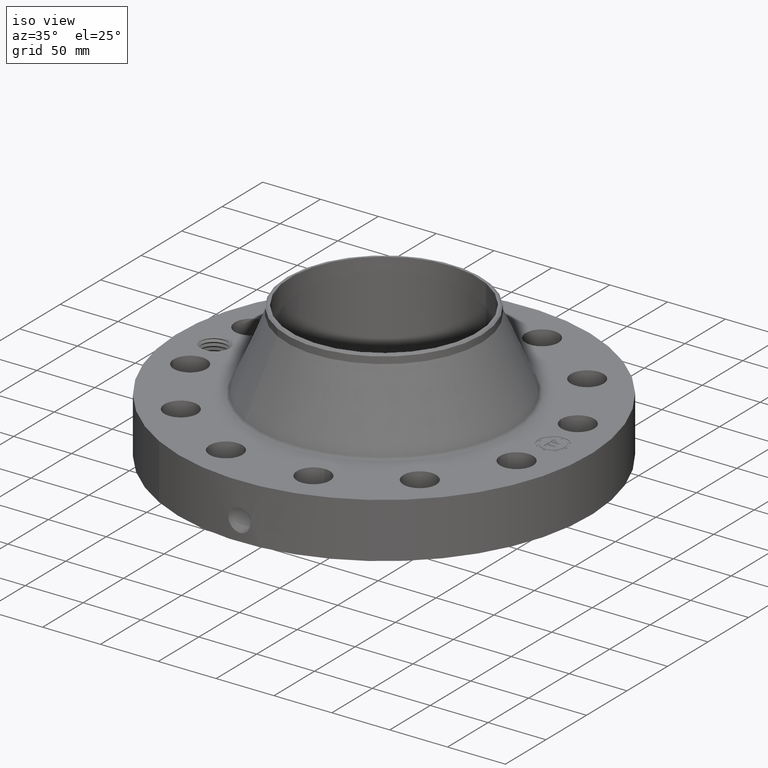
[diagram: clean part render]
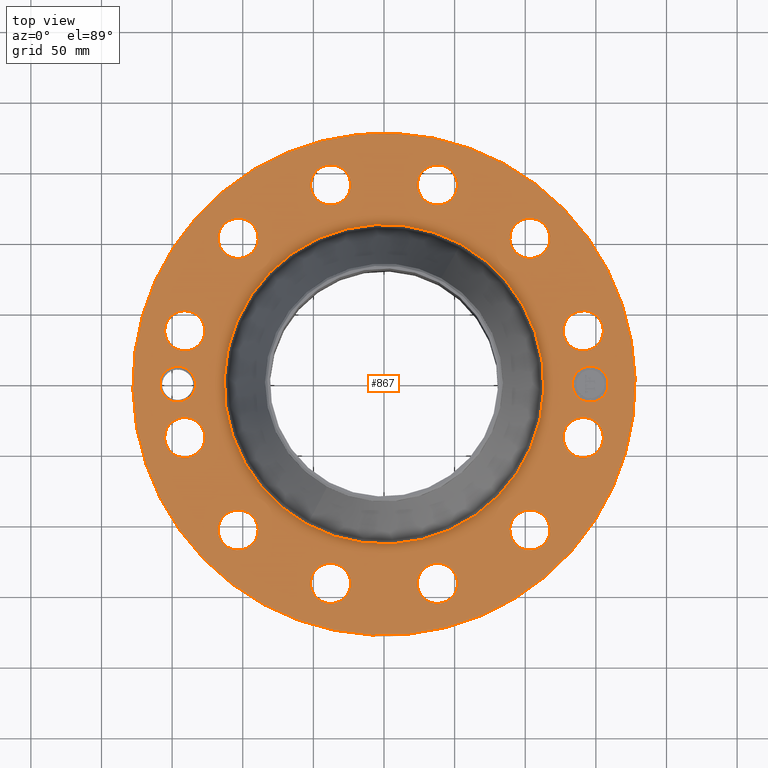
[diagram: tour spotlight — one face highlighted and labeled with its STEP entity id]
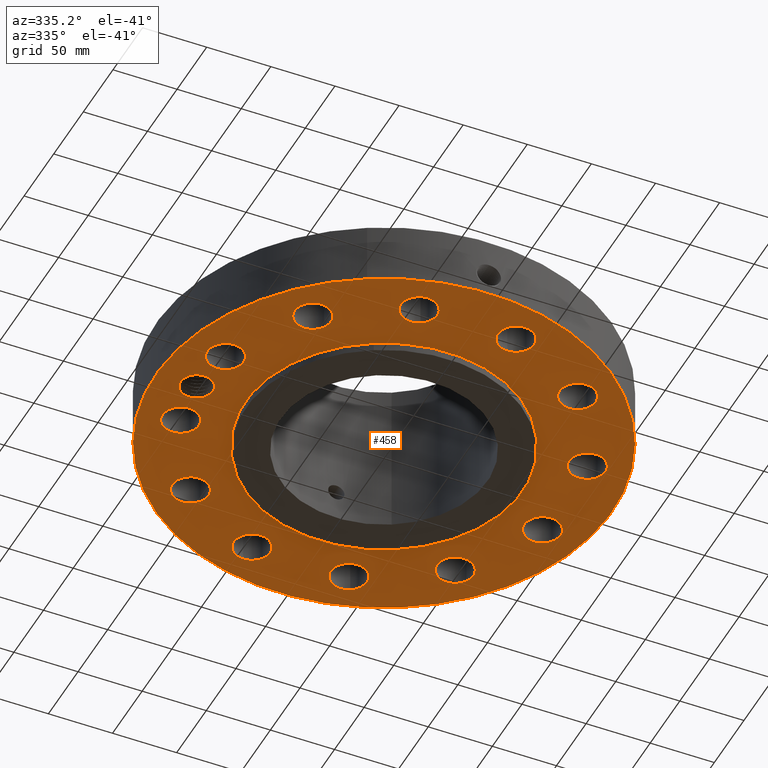
[diagram: tour spotlight — one face highlighted and labeled with its STEP entity id]
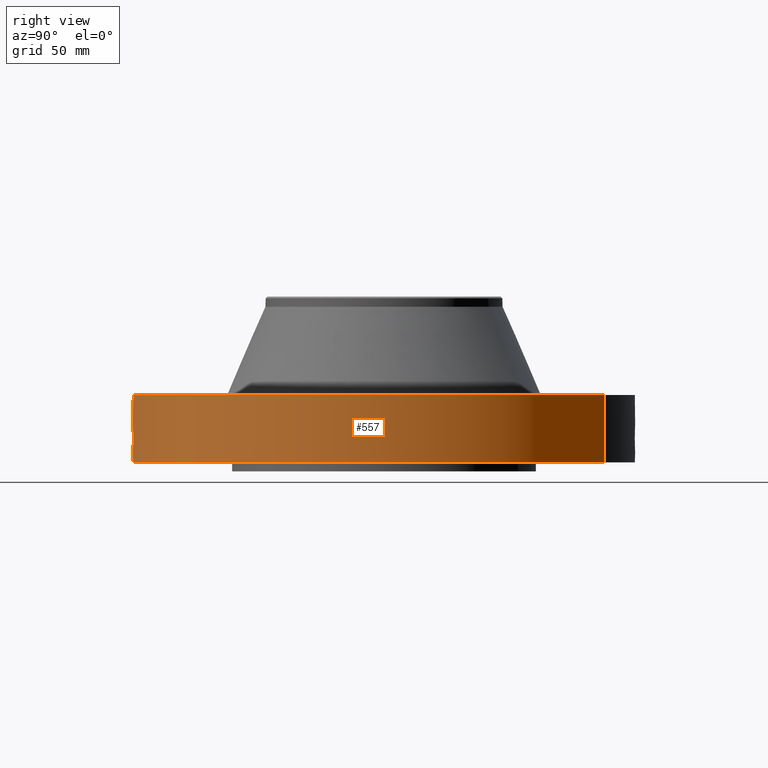
[diagram: tour spotlight — one face highlighted and labeled with its STEP entity id]
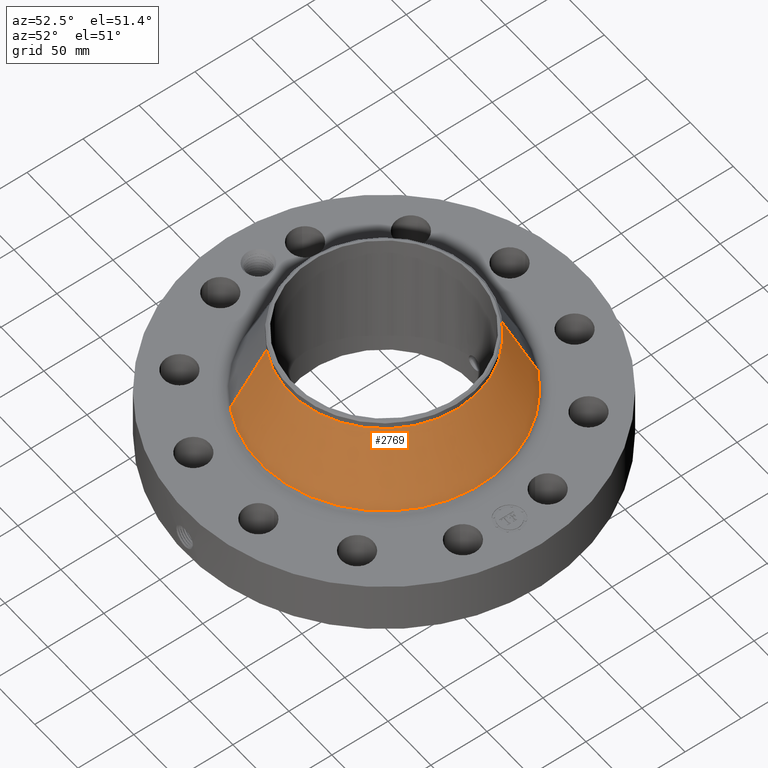
[diagram: tour spotlight — one face highlighted and labeled with its STEP entity id]
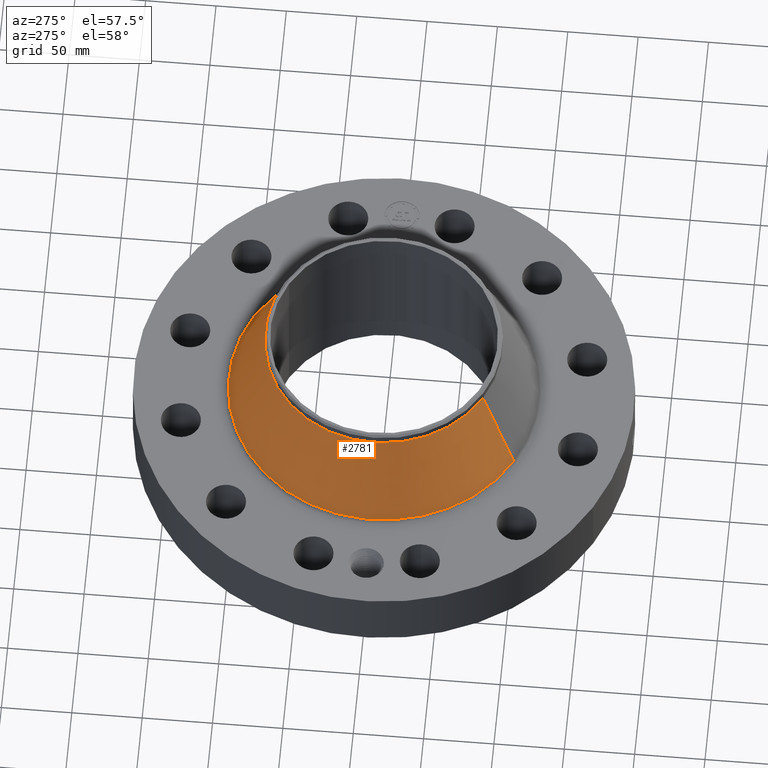
[diagram: tour spotlight — one face highlighted and labeled with its STEP entity id]
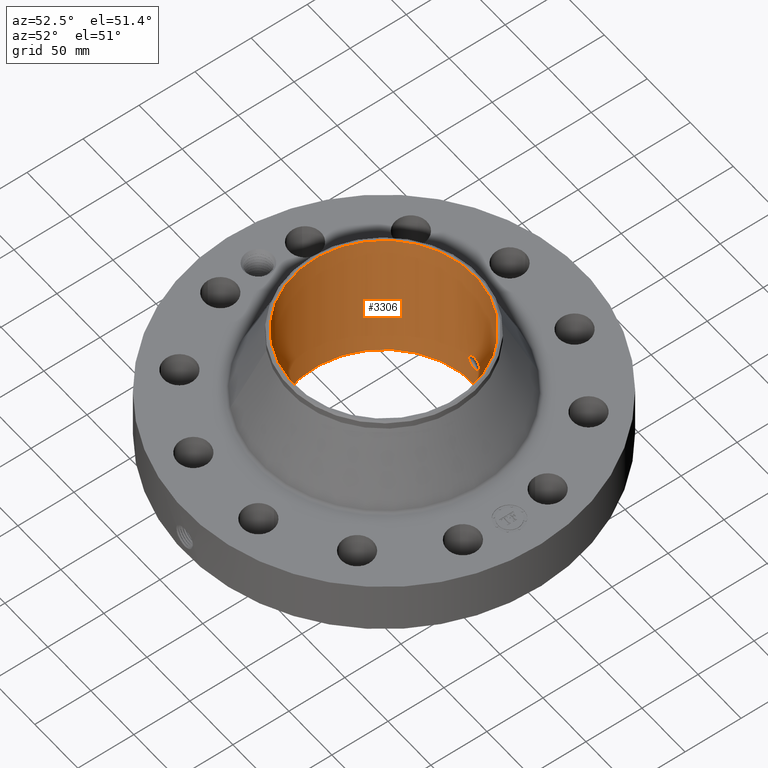
[diagram: tour spotlight — one face highlighted and labeled with its STEP entity id]
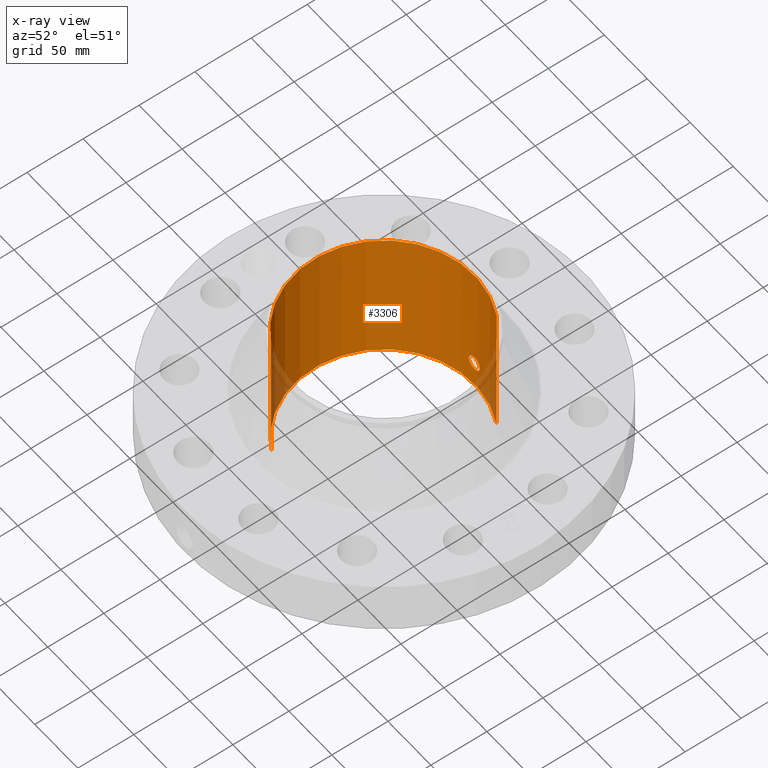
[diagram: x-ray of the same camera — body ghosted, this tour face saturated]
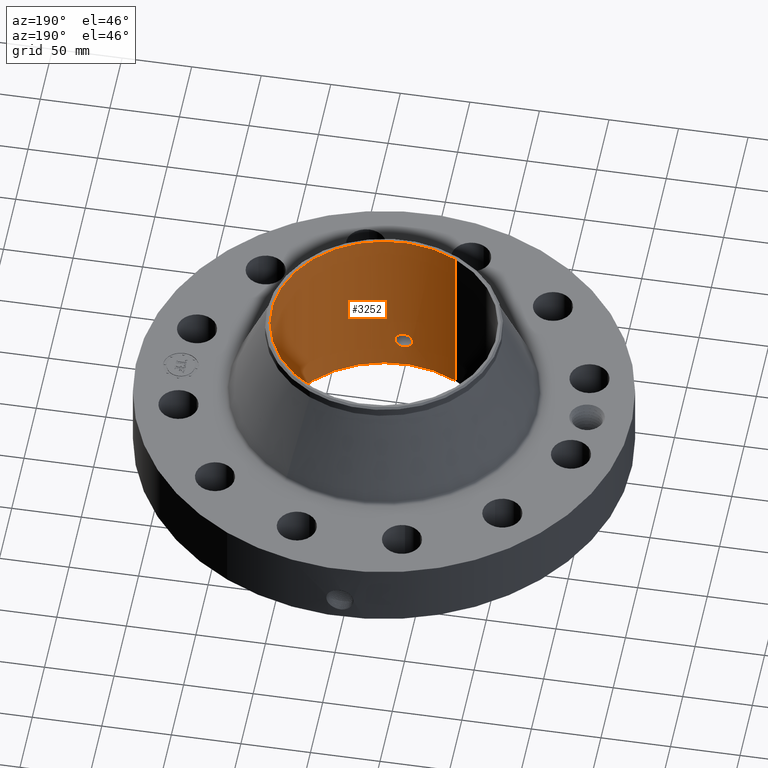
[diagram: tour spotlight — one face highlighted and labeled with its STEP entity id]
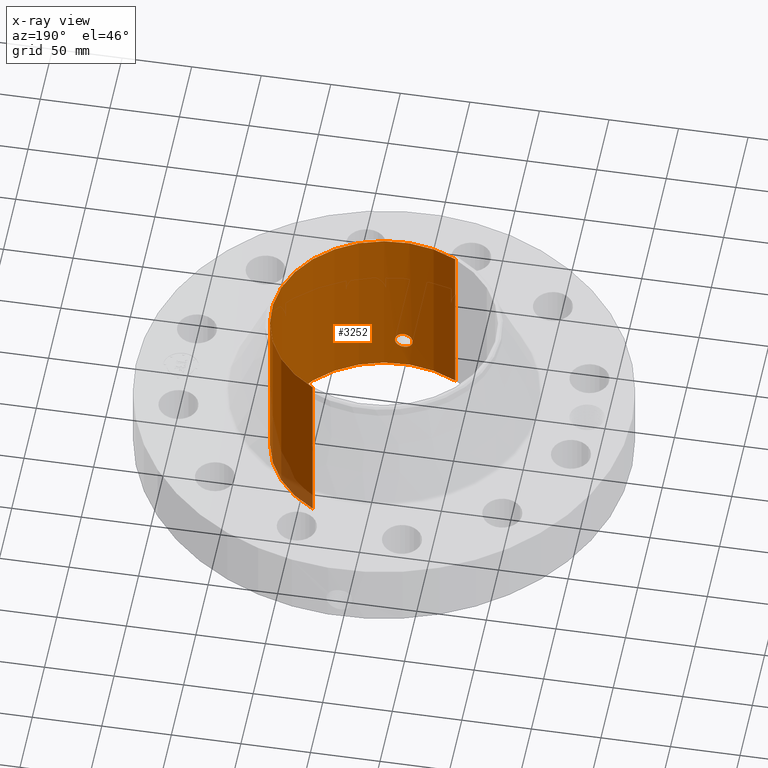
[diagram: x-ray of the same camera — body ghosted, this tour face saturated]
A machine part: a face-by-face anatomy tour. The part has 779 B-rep faces; the first image is the clean iso view, then the 7 largest visible faces are spotlighted one at a time (largest first), each with its STEP entity span.

Face 1 — top view, entity #867. In plain terms, the highlighted planar face has unit normal (0, 0, -1).
Definition (entity closure, byte-faithful):
#58=AXIS2_PLACEMENT_3D('Circle Axis2P3D',#56,#57,$) ;
#461=AXIS2_PLACEMENT_3D('Circle Axis2P3D',#459,#460,$) ;
#561=AXIS2_PLACEMENT_3D('Plane Axis2P3D',#558,#559,#560) ;
#591=AXIS2_PLACEMENT_3D('Circle Axis2P3D',#589,#590,$) ;
#598=AXIS2_PLACEMENT_3D('Circle Axis2P3D',#596,#597,$) ;
#605=AXIS2_PLACEMENT_3D('Circle Axis2P3D',#603,#604,$) ;
#617=AXIS2_PLACEMENT_3D('Circle Axis2P3D',#615,#616,$) ;
#626=AXIS2_PLACEMENT_3D('Circle Axis2P3D',#624,#625,$) ;
#635=AXIS2_PLACEMENT_3D('Circle Axis2P3D',#633,#634,$) ;
#644=AXIS2_PLACEMENT_3D('Circle Axis2P3D',#642,#643,$) ;
#653=AXIS2_PLACEMENT_3D('Circle Axis2P3D',#651,#652,$) ;
#662=AXIS2_PLACEMENT_3D('Circle Axis2P3D',#660,#661,$) ;
#671=AXIS2_PLACEMENT_3D('Circle Axis2P3D',#669,#670,$) ;
#680=AXIS2_PLACEMENT_3D('Circle Axis2P3D',#678,#679,$) ;
#689=AXIS2_PLACEMENT_3D('Circle Axis2P3D',#687,#688,$) ;
#698=AXIS2_PLACEMENT_3D('Circle Axis2P3D',#696,#697,$) ;
#707=AXIS2_PLACEMENT_3D('Circle Axis2P3D',#705,#706,$) ;
#716=AXIS2_PLACEMENT_3D('Circle Axis2P3D',#714,#715,$) ;
#725=AXIS2_PLACEMENT_3D('Circle Axis2P3D',#723,#724,$) ;
#734=AXIS2_PLACEMENT_3D('Circle Axis2P3D',#732,#733,$) ;
#743=AXIS2_PLACEMENT_3D('Circle Axis2P3D',#741,#742,$) ;
#752=AXIS2_PLACEMENT_3D('Circle Axis2P3D',#750,#751,$) ;
#761=AXIS2_PLACEMENT_3D('Circle Axis2P3D',#759,#760,$) ;
#770=AXIS2_PLACEMENT_3D('Circle Axis2P3D',#768,#769,$) ;
#779=AXIS2_PLACEMENT_3D('Circle Axis2P3D',#777,#778,$) ;
#788=AXIS2_PLACEMENT_3D('Circle Axis2P3D',#786,#787,$) ;
#797=AXIS2_PLACEMENT_3D('Circle Axis2P3D',#795,#796,$) ;
#806=AXIS2_PLACEMENT_3D('Circle Axis2P3D',#804,#805,$) ;
#815=AXIS2_PLACEMENT_3D('Circle Axis2P3D',#813,#814,$) ;
#824=AXIS2_PLACEMENT_3D('Circle Axis2P3D',#822,#823,$) ;
#833=AXIS2_PLACEMENT_3D('Circle Axis2P3D',#831,#832,$) ;
#842=AXIS2_PLACEMENT_3D('Circle Axis2P3D',#840,#841,$) ;
#851=AXIS2_PLACEMENT_3D('Circle Axis2P3D',#849,#850,$) ;
#860=AXIS2_PLACEMENT_3D('Circle Axis2P3D',#858,#859,$) ;
#53=CARTESIAN_POINT('Vertex',(-3.35597877024,-6.14307793326,2.13000000001)) ;
#56=CARTESIAN_POINT('Axis2P3D Location',(0.,0.,2.13000000001)) ;
#60=CARTESIAN_POINT('Vertex',(3.35597877024,6.14307793326,2.13000000001)) ;
#459=CARTESIAN_POINT('Axis2P3D Location',(0.,0.,2.13000000001)) ;
#558=CARTESIAN_POINT('Axis2P3D Location',(0.,7.00000000003,2.13000000001)) ;
#568=CARTESIAN_POINT('Control Point',(-5.25000000002,0.,2.13000000001)) ;
#569=CARTESIAN_POINT('Control Point',(-5.25049933802,0.0123420463919,2.13000000001)) ;
#570=CARTESIAN_POINT('Control Point',(-5.25137982042,0.0246614774698,2.13000000001)) ;
#571=CARTESIAN_POINT('Control Point',(-5.25264056911,0.0369424721608,2.13000000001)) ;
#572=CARTESIAN_POINT('Control Point',(-5.2542796816,0.049169256027,2.13000000001)) ;
#573=CARTESIAN_POINT('Control Point',(-5.25629427432,0.0613262293412,2.13000000001)) ;
#574=CARTESIAN_POINT('Vertex',(-5.25000000002,0.,2.13000000001)) ;
#576=CARTESIAN_POINT('Vertex',(-5.25629427432,0.0613262293412,2.13000000001)) ;
#580=CARTESIAN_POINT('Control Point',(-5.25000000002,-1.1189649382E-015,2.13000000001)) ;
#581=CARTESIAN_POINT('Control Point',(-5.25049957699,-0.0123479535019,2.13000000001)) ;
#582=CARTESIAN_POINT('Control Point',(-5.2513806633,-0.0246732700015,2.13000000001)) ;
#583=CARTESIAN_POINT('Control Point',(-5.25264220382,-0.0369597295558,2.13000000001)) ;
#584=CARTESIAN_POINT('Control Point',(-5.25428215059,-0.0491912764619,2.13000000001)) ;
#585=CARTESIAN_POINT('Control Point',(-5.25629749089,-0.0613521187706,2.13000000001)) ;
#586=CARTESIAN_POINT('Vertex',(-5.25629749089,-0.0613521187706,2.13000000001)) ;
#589=CARTESIAN_POINT('Axis2P3D Location',(-5.75000000002,-6.71378962923E-015,2.13000000001)) ;
#593=CARTESIAN_POINT('Vertex',(-5.31340267548,-0.238514205457,2.13000000001)) ;
#596=CARTESIAN_POINT('Axis2P3D Location',(-5.75000000002,-6.71378962923E-015,2.13000000001)) ;
#600=CARTESIAN_POINT('Vertex',(-6.18659732457,0.238514205457,2.13000000001)) ;
#603=CARTESIAN_POINT('Axis2P3D Location',(-5.75000000002,-6.71378962923E-015,2.13000000001)) ;
#615=CARTESIAN_POINT('Axis2P3D Location',(5.55407350118,-1.48820950935,2.13000000001)) ;
#619=CARTESIAN_POINT('Vertex',(5.06262726652,-1.21973120773,2.13000000001)) ;
#621=CARTESIAN_POINT('Vertex',(6.04551973584,-1.75668781096,2.13000000001)) ;
#624=CARTESIAN_POINT('Axis2P3D Location',(5.55407350118,-1.48820950935,2.13000000001)) ;
#633=CARTESIAN_POINT('Axis2P3D Location',(0.,0.,2.13000000001)) ;
#637=CARTESIAN_POINT('Vertex',(-2.13533832366,-3.90871058317,2.13000000001)) ;
#639=CARTESIAN_POINT('Vertex',(2.13533832366,3.90871058317,2.13000000001)) ;
#642=CARTESIAN_POINT('Axis2P3D Location',(0.,0.,2.13000000001)) ;
#651=CARTESIAN_POINT('Axis2P3D Location',(4.06586399184,-4.06586399184,2.13000000001)) ;
#655=CARTESIAN_POINT('Vertex',(4.35722976484,-4.54409613874,2.13000000001)) ;
#657=CARTESIAN_POINT('Vertex',(3.77449821884,-3.58763184494,2.13000000001)) ;
#660=CARTESIAN_POINT('Axis2P3D Location',(4.06586399184,-4.06586399184,2.13000000001)) ;
#669=CARTESIAN_POINT('Axis2P3D Location',(1.48820950935,-5.55407350118,2.13000000001)) ;
#673=CARTESIAN_POINT('Vertex',(1.50142359711,-6.1139175758,2.13000000001)) ;
#675=CARTESIAN_POINT('Vertex',(1.47499542158,-4.99422942656,2.13000000001)) ;
#678=CARTESIAN_POINT('Axis2P3D Location',(1.48820950935,-5.55407350118,2.13000000001)) ;
#687=CARTESIAN_POINT('Axis2P3D Location',(-1.48820950935,-5.55407350118,2.13000000001)) ;
#691=CARTESIAN_POINT('Vertex',(-1.75668781096,-6.04551973584,2.13000000001)) ;
#693=CARTESIAN_POINT('Vertex',(-1.21973120773,-5.06262726652,2.13000000001)) ;
#696=CARTESIAN_POINT('Axis2P3D Location',(-1.48820950935,-5.55407350118,2.13000000001)) ;
#705=CARTESIAN_POINT('Axis2P3D Location',(-4.06586399184,-4.06586399184,2.13000000001)) ;
#709=CARTESIAN_POINT('Vertex',(-4.54409613874,-4.35722976484,2.13000000001)) ;
#711=CARTESIAN_POINT('Vertex',(-3.58763184494,-3.77449821884,2.13000000001)) ;
#714=CARTESIAN_POINT('Axis2P3D Location',(-4.06586399184,-4.06586399184,2.13000000001)) ;
#723=CARTESIAN_POINT('Axis2P3D Location',(-5.55407350118,-1.48820950935,2.13000000001)) ;
#727=CARTESIAN_POINT('Vertex',(-6.1139175758,-1.50142359711,2.13000000001)) ;
#729=CARTESIAN_POINT('Vertex',(-4.99422942656,-1.47499542158,2.13000000001)) ;
#732=CARTESIAN_POINT('Axis2P3D Location',(-5.55407350118,-1.48820950935,2.13000000001)) ;
#741=CARTESIAN_POINT('Axis2P3D Location',(-5.55407350118,1.48820950935,2.13000000001)) ;
#745=CARTESIAN_POINT('Vertex',(-6.04551973584,1.75668781096,2.13000000001)) ;
#747=CARTESIAN_POINT('Vertex',(-5.06262726652,1.21973120773,2.13000000001)) ;
#750=CARTESIAN_POINT('Axis2P3D Location',(-5.55407350118,1.48820950935,2.13000000001)) ;
#759=CARTESIAN_POINT('Axis2P3D Location',(-4.06586399184,4.06586399184,2.13000000001)) ;
#763=CARTESIAN_POINT('Vertex',(-4.35722976484,4.54409613874,2.13000000001)) ;
#765=CARTESIAN_POINT('Vertex',(-3.77449821884,3.58763184494,2.13000000001)) ;
#768=CARTESIAN_POINT('Axis2P3D Location',(-4.06586399184,4.06586399184,2.13000000001)) ;
#777=CARTESIAN_POINT('Axis2P3D Location',(-1.48820950935,5.55407350118,2.13000000001)) ;
#781=CARTESIAN_POINT('Vertex',(-1.50142359711,6.1139175758,2.13000000001)) ;
#783=CARTESIAN_POINT('Vertex',(-1.47499542158,4.99422942656,2.13000000001)) ;
#786=CARTESIAN_POINT('Axis2P3D Location',(-1.48820950935,5.55407350118,2.13000000001)) ;
#795=CARTESIAN_POINT('Axis2P3D Location',(1.48820950935,5.55407350118,2.13000000001)) ;
#799=CARTESIAN_POINT('Vertex',(1.75668781096,6.04551973584,2.13000000001)) ;
#801=CARTESIAN_POINT('Vertex',(1.21973120773,5.06262726652,2.13000000001)) ;
#804=CARTESIAN_POINT('Axis2P3D Location',(1.48820950935,5.55407350118,2.13000000001)) ;
#813=CARTESIAN_POINT('Axis2P3D Location',(4.06586399184,4.06586399184,2.13000000001)) ;
#817=CARTESIAN_POINT('Vertex',(4.54409613874,4.35722976484,2.13000000001)) ;
#819=CARTESIAN_POINT('Vertex',(3.58763184494,3.77449821884,2.13000000001)) ;
#822=CARTESIAN_POINT('Axis2P3D Location',(4.06586399184,4.06586399184,2.13000000001)) ;
#831=CARTESIAN_POINT('Axis2P3D Location',(5.55407350118,1.48820950935,2.13000000001)) ;
#835=CARTESIAN_POINT('Vertex',(6.1139175758,1.50142359711,2.13000000001)) ;
#837=CARTESIAN_POINT('Vertex',(4.99422942656,1.47499542158,2.13000000001)) ;
#840=CARTESIAN_POINT('Axis2P3D Location',(5.55407350118,1.48820950935,2.13000000001)) ;
#849=CARTESIAN_POINT('Axis2P3D Location',(5.75000000002,-2.12603338259E-014,2.13000000001)) ;
#853=CARTESIAN_POINT('Vertex',(5.75000000002,0.499999995002,2.13000000001)) ;
#855=CARTESIAN_POINT('Vertex',(5.75000000002,-0.499999995002,2.13000000001)) ;
#858=CARTESIAN_POINT('Axis2P3D Location',(5.75000000002,-2.12603338259E-014,2.13000000001)) ;
#57=DIRECTION('Axis2P3D Direction',(0.,0.,-0.0393700787402)) ;
#460=DIRECTION('Axis2P3D Direction',(0.,0.,-0.0393700787402)) ;
#559=DIRECTION('Axis2P3D Direction',(0.,0.,-0.0393700787402)) ;
#560=DIRECTION('Axis2P3D XDirection',(0.0393700787402,0.,0.)) ;
#590=DIRECTION('Axis2P3D Direction',(0.,0.,-0.0393700787402)) ;
#597=DIRECTION('Axis2P3D Direction',(0.,0.,-0.0393700787402)) ;
#604=DIRECTION('Axis2P3D Direction',(0.,0.,-0.0393700787402)) ;
#616=DIRECTION('Axis2P3D Direction',(0.,0.,-0.0393700787402)) ;
#625=DIRECTION('Axis2P3D Direction',(0.,0.,-0.0393700787402)) ;
#634=DIRECTION('Axis2P3D Direction',(0.,0.,-0.0393700787402)) ;
#643=DIRECTION('Axis2P3D Direction',(0.,0.,-0.0393700787402)) ;
#652=DIRECTION('Axis2P3D Direction',(0.,0.,-0.0393700787402)) ;
#661=DIRECTION('Axis2P3D Direction',(0.,0.,-0.0393700787402)) ;
#670=DIRECTION('Axis2P3D Direction',(0.,0.,-0.0393700787402)) ;
#679=DIRECTION('Axis2P3D Direction',(0.,0.,-0.0393700787402)) ;
#688=DIRECTION('Axis2P3D Direction',(0.,0.,-0.0393700787402)) ;
#697=DIRECTION('Axis2P3D Direction',(0.,0.,-0.0393700787402)) ;
#706=DIRECTION('Axis2P3D Direction',(0.,0.,-0.0393700787402)) ;
#715=DIRECTION('Axis2P3D Direction',(0.,0.,-0.0393700787402)) ;
#724=DIRECTION('Axis2P3D Direction',(0.,0.,-0.0393700787402)) ;
#733=DIRECTION('Axis2P3D Direction',(0.,0.,-0.0393700787402)) ;
#742=DIRECTION('Axis2P3D Direction',(0.,0.,-0.0393700787402)) ;
#751=DIRECTION('Axis2P3D Direction',(0.,0.,-0.0393700787402)) ;
#760=DIRECTION('Axis2P3D Direction',(0.,0.,-0.0393700787402)) ;
#769=DIRECTION('Axis2P3D Direction',(0.,0.,-0.0393700787402)) ;
#778=DIRECTION('Axis2P3D Direction',(0.,0.,-0.0393700787402)) ;
#787=DIRECTION('Axis2P3D Direction',(0.,0.,-0.0393700787402)) ;
#796=DIRECTION('Axis2P3D Direction',(0.,0.,-0.0393700787402)) ;
#805=DIRECTION('Axis2P3D Direction',(0.,0.,-0.0393700787402)) ;
#814=DIRECTION('Axis2P3D Direction',(0.,0.,-0.0393700787402)) ;
#823=DIRECTION('Axis2P3D Direction',(0.,0.,-0.0393700787402)) ;
#832=DIRECTION('Axis2P3D Direction',(0.,0.,-0.0393700787402)) ;
#841=DIRECTION('Axis2P3D Direction',(0.,0.,-0.0393700787402)) ;
#850=DIRECTION('Axis2P3D Direction',(0.,0.,-0.0393700787402)) ;
#859=DIRECTION('Axis2P3D Direction',(0.,0.,-0.0393700787402)) ;
#564=ORIENTED_EDGE('',*,*,#463,.F.) ;
#565=ORIENTED_EDGE('',*,*,#62,.F.) ;
#609=ORIENTED_EDGE('',*,*,#578,.F.) ;
#610=ORIENTED_EDGE('',*,*,#588,.T.) ;
#611=ORIENTED_EDGE('',*,*,#595,.T.) ;
#612=ORIENTED_EDGE('',*,*,#602,.T.) ;
#613=ORIENTED_EDGE('',*,*,#607,.T.) ;
#630=ORIENTED_EDGE('',*,*,#623,.T.) ;
#631=ORIENTED_EDGE('',*,*,#628,.T.) ;
#648=ORIENTED_EDGE('',*,*,#641,.T.) ;
#649=ORIENTED_EDGE('',*,*,#646,.T.) ;
#666=ORIENTED_EDGE('',*,*,#659,.T.) ;
#667=ORIENTED_EDGE('',*,*,#664,.T.) ;
#684=ORIENTED_EDGE('',*,*,#677,.T.) ;
#685=ORIENTED_EDGE('',*,*,#682,.T.) ;
#702=ORIENTED_EDGE('',*,*,#695,.T.) ;
#703=ORIENTED_EDGE('',*,*,#700,.T.) ;
#720=ORIENTED_EDGE('',*,*,#713,.T.) ;
#721=ORIENTED_EDGE('',*,*,#718,.T.) ;
#738=ORIENTED_EDGE('',*,*,#731,.T.) ;
#739=ORIENTED_EDGE('',*,*,#736,.T.) ;
#756=ORIENTED_EDGE('',*,*,#749,.T.) ;
#757=ORIENTED_EDGE('',*,*,#754,.T.) ;
#774=ORIENTED_EDGE('',*,*,#767,.T.) ;
#775=ORIENTED_EDGE('',*,*,#772,.T.) ;
#792=ORIENTED_EDGE('',*,*,#785,.T.) ;
#793=ORIENTED_EDGE('',*,*,#790,.T.) ;
#810=ORIENTED_EDGE('',*,*,#803,.T.) ;
#811=ORIENTED_EDGE('',*,*,#808,.T.) ;
#828=ORIENTED_EDGE('',*,*,#821,.T.) ;
#829=ORIENTED_EDGE('',*,*,#826,.T.) ;
#846=ORIENTED_EDGE('',*,*,#839,.T.) ;
#847=ORIENTED_EDGE('',*,*,#844,.T.) ;
#864=ORIENTED_EDGE('',*,*,#857,.T.) ;
#865=ORIENTED_EDGE('',*,*,#862,.T.) ;
#614=FACE_BOUND('',#608,.T.) ;
#632=FACE_BOUND('',#629,.T.) ;
#650=FACE_BOUND('',#647,.T.) ;
#668=FACE_BOUND('',#665,.T.) ;
#686=FACE_BOUND('',#683,.T.) ;
#704=FACE_BOUND('',#701,.T.) ;
#722=FACE_BOUND('',#719,.T.) ;
#740=FACE_BOUND('',#737,.T.) ;
#758=FACE_BOUND('',#755,.T.) ;
#776=FACE_BOUND('',#773,.T.) ;
#794=FACE_BOUND('',#791,.T.) ;
#812=FACE_BOUND('',#809,.T.) ;
#830=FACE_BOUND('',#827,.T.) ;
#848=FACE_BOUND('',#845,.T.) ;
#866=FACE_BOUND('',#863,.T.) ;
#867=ADVANCED_FACE('PartBody',(#566,#614,#632,#650,#668,#686,#704,#722,#740,#758,#776,#794,#812,#830,#848,#866),#562,.F.) ;
#567=B_SPLINE_CURVE_WITH_KNOTS('',5,(#568,#569,#570,#571,#572,#573),.UNSPECIFIED.,.F.,.U.,(6,6),(0.,2.15175568164),.UNSPECIFIED.) ;
#579=B_SPLINE_CURVE_WITH_KNOTS('',5,(#580,#581,#582,#583,#584,#585),.UNSPECIFIED.,.F.,.U.,(6,6),(0.,2.15278554784),.UNSPECIFIED.) ;
#59=CIRCLE('generated circle',#58,7.00000000003) ;
#462=CIRCLE('generated circle',#461,7.00000000003) ;
#592=CIRCLE('generated circle',#591,0.497500000002) ;
#599=CIRCLE('generated circle',#598,0.497500000002) ;
#606=CIRCLE('generated circle',#605,0.497500000002) ;
#618=CIRCLE('generated circle',#617,0.560000000002) ;
#627=CIRCLE('generated circle',#626,0.560000000002) ;
#636=CIRCLE('generated circle',#635,4.45395197319) ;
#645=CIRCLE('generated circle',#644,4.45395197319) ;
#654=CIRCLE('generated circle',#653,0.560000000002) ;
#663=CIRCLE('generated circle',#662,0.560000000002) ;
#672=CIRCLE('generated circle',#671,0.560000000002) ;
#681=CIRCLE('generated circle',#680,0.560000000002) ;
#690=CIRCLE('generated circle',#689,0.560000000002) ;
#699=CIRCLE('generated circle',#698,0.560000000002) ;
#708=CIRCLE('generated circle',#707,0.560000000002) ;
#717=CIRCLE('generated circle',#716,0.560000000002) ;
#726=CIRCLE('generated circle',#725,0.560000000002) ;
#735=CIRCLE('generated circle',#734,0.560000000002) ;
#744=CIRCLE('generated circle',#743,0.560000000002) ;
#753=CIRCLE('generated circle',#752,0.560000000002) ;
#762=CIRCLE('generated circle',#761,0.560000000002) ;
#771=CIRCLE('generated circle',#770,0.560000000002) ;
#780=CIRCLE('generated circle',#779,0.560000000002) ;
#789=CIRCLE('generated circle',#788,0.560000000002) ;
#798=CIRCLE('generated circle',#797,0.560000000002) ;
#807=CIRCLE('generated circle',#806,0.560000000002) ;
#816=CIRCLE('generated circle',#815,0.560000000002) ;
#825=CIRCLE('generated circle',#824,0.560000000002) ;
#834=CIRCLE('generated circle',#833,0.560000000002) ;
#843=CIRCLE('generated circle',#842,0.560000000002) ;
#852=CIRCLE('generated circle',#851,0.499999995002) ;
#861=CIRCLE('generated circle',#860,0.499999995002) ;
#62=EDGE_CURVE('',#54,#61,#59,.T.) ;
#463=EDGE_CURVE('',#61,#54,#462,.T.) ;
#578=EDGE_CURVE('',#575,#577,#567,.T.) ;
#588=EDGE_CURVE('',#575,#587,#579,.T.) ;
#595=EDGE_CURVE('',#587,#594,#592,.T.) ;
#602=EDGE_CURVE('',#594,#601,#599,.T.) ;
#607=EDGE_CURVE('',#601,#577,#606,.T.) ;
#623=EDGE_CURVE('',#620,#622,#618,.T.) ;
#628=EDGE_CURVE('',#622,#620,#627,.T.) ;
#641=EDGE_CURVE('',#638,#640,#636,.T.) ;
#646=EDGE_CURVE('',#640,#638,#645,.T.) ;
#659=EDGE_CURVE('',#656,#658,#654,.T.) ;
#664=EDGE_CURVE('',#658,#656,#663,.T.) ;
#677=EDGE_CURVE('',#674,#676,#672,.T.) ;
#682=EDGE_CURVE('',#676,#674,#681,.T.) ;
#695=EDGE_CURVE('',#692,#694,#690,.T.) ;
#700=EDGE_CURVE('',#694,#692,#699,.T.) ;
#713=EDGE_CURVE('',#710,#712,#708,.T.) ;
#718=EDGE_CURVE('',#712,#710,#717,.T.) ;
#731=EDGE_CURVE('',#728,#730,#726,.T.) ;
#736=EDGE_CURVE('',#730,#728,#735,.T.) ;
#749=EDGE_CURVE('',#746,#748,#744,.T.) ;
#754=EDGE_CURVE('',#748,#746,#753,.T.) ;
#767=EDGE_CURVE('',#764,#766,#762,.T.) ;
#772=EDGE_CURVE('',#766,#764,#771,.T.) ;
#785=EDGE_CURVE('',#782,#784,#780,.T.) ;
#790=EDGE_CURVE('',#784,#782,#789,.T.) ;
#803=EDGE_CURVE('',#800,#802,#798,.T.) ;
#808=EDGE_CURVE('',#802,#800,#807,.T.) ;
#821=EDGE_CURVE('',#818,#820,#816,.T.) ;
#826=EDGE_CURVE('',#820,#818,#825,.T.) ;
#839=EDGE_CURVE('',#836,#838,#834,.T.) ;
#844=EDGE_CURVE('',#838,#836,#843,.T.) ;
#857=EDGE_CURVE('',#854,#856,#852,.T.) ;
#862=EDGE_CURVE('',#856,#854,#861,.T.) ;
#563=EDGE_LOOP('',(#564,#565)) ;
#608=EDGE_LOOP('',(#609,#610,#611,#612,#613)) ;
#629=EDGE_LOOP('',(#630,#631)) ;
#647=EDGE_LOOP('',(#648,#649)) ;
#665=EDGE_LOOP('',(#666,#667)) ;
#683=EDGE_LOOP('',(#684,#685)) ;
#701=EDGE_LOOP('',(#702,#703)) ;
#719=EDGE_LOOP('',(#720,#721)) ;
#737=EDGE_LOOP('',(#738,#739)) ;
#755=EDGE_LOOP('',(#756,#757)) ;
#773=EDGE_LOOP('',(#774,#775)) ;
#791=EDGE_LOOP('',(#792,#793)) ;
#809=EDGE_LOOP('',(#810,#811)) ;
#827=EDGE_LOOP('',(#828,#829)) ;
#845=EDGE_LOOP('',(#846,#847)) ;
#863=EDGE_LOOP('',(#864,#865)) ;
#566=FACE_OUTER_BOUND('',#563,.T.) ;
#562=PLANE('',#561) ;
#54=VERTEX_POINT('',#53) ;
#61=VERTEX_POINT('',#60) ;
#575=VERTEX_POINT('',#574) ;
#577=VERTEX_POINT('',#576) ;
#587=VERTEX_POINT('',#586) ;
#594=VERTEX_POINT('',#593) ;
#601=VERTEX_POINT('',#600) ;
#620=VERTEX_POINT('',#619) ;
#622=VERTEX_POINT('',#621) ;
#638=VERTEX_POINT('',#637) ;
#640=VERTEX_POINT('',#639) ;
#656=VERTEX_POINT('',#655) ;
#658=VERTEX_POINT('',#657) ;
#674=VERTEX_POINT('',#673) ;
#676=VERTEX_POINT('',#675) ;
#692=VERTEX_POINT('',#691) ;
#694=VERTEX_POINT('',#693) ;
#710=VERTEX_POINT('',#709) ;
#712=VERTEX_POINT('',#711) ;
#728=VERTEX_POINT('',#727) ;
#730=VERTEX_POINT('',#729) ;
#746=VERTEX_POINT('',#745) ;
#748=VERTEX_POINT('',#747) ;
#764=VERTEX_POINT('',#763) ;
#766=VERTEX_POINT('',#765) ;
#782=VERTEX_POINT('',#781) ;
#784=VERTEX_POINT('',#783) ;
#800=VERTEX_POINT('',#799) ;
#802=VERTEX_POINT('',#801) ;
#818=VERTEX_POINT('',#817) ;
#820=VERTEX_POINT('',#819) ;
#836=VERTEX_POINT('',#835) ;
#838=VERTEX_POINT('',#837) ;
#854=VERTEX_POINT('',#853) ;
#856=VERTEX_POINT('',#855) ;

Face 2 — auxiliary view, entity #458. In plain terms, the highlighted planar face has unit normal (0, 0, -1).
Definition (entity closure, byte-faithful):
#42=AXIS2_PLACEMENT_3D('Circle Axis2P3D',#40,#41,$) ;
#165=AXIS2_PLACEMENT_3D('Plane Axis2P3D',#162,#163,#164) ;
#169=AXIS2_PLACEMENT_3D('Circle Axis2P3D',#167,#168,$) ;
#178=AXIS2_PLACEMENT_3D('Circle Axis2P3D',#176,#177,$) ;
#187=AXIS2_PLACEMENT_3D('Circle Axis2P3D',#185,#186,$) ;
#194=AXIS2_PLACEMENT_3D('Circle Axis2P3D',#192,#193,$) ;
#226=AXIS2_PLACEMENT_3D('Circle Axis2P3D',#224,#225,$) ;
#235=AXIS2_PLACEMENT_3D('Circle Axis2P3D',#233,#234,$) ;
#244=AXIS2_PLACEMENT_3D('Circle Axis2P3D',#242,#243,$) ;
#253=AXIS2_PLACEMENT_3D('Circle Axis2P3D',#251,#252,$) ;
#262=AXIS2_PLACEMENT_3D('Circle Axis2P3D',#260,#261,$) ;
#271=AXIS2_PLACEMENT_3D('Circle Axis2P3D',#269,#270,$) ;
#280=AXIS2_PLACEMENT_3D('Circle Axis2P3D',#278,#279,$) ;
#289=AXIS2_PLACEMENT_3D('Circle Axis2P3D',#287,#288,$) ;
#298=AXIS2_PLACEMENT_3D('Circle Axis2P3D',#296,#297,$) ;
#307=AXIS2_PLACEMENT_3D('Circle Axis2P3D',#305,#306,$) ;
#316=AXIS2_PLACEMENT_3D('Circle Axis2P3D',#314,#315,$) ;
#325=AXIS2_PLACEMENT_3D('Circle Axis2P3D',#323,#324,$) ;
#334=AXIS2_PLACEMENT_3D('Circle Axis2P3D',#332,#333,$) ;
#343=AXIS2_PLACEMENT_3D('Circle Axis2P3D',#341,#342,$) ;
#352=AXIS2_PLACEMENT_3D('Circle Axis2P3D',#350,#351,$) ;
#361=AXIS2_PLACEMENT_3D('Circle Axis2P3D',#359,#360,$) ;
#370=AXIS2_PLACEMENT_3D('Circle Axis2P3D',#368,#369,$) ;
#379=AXIS2_PLACEMENT_3D('Circle Axis2P3D',#377,#378,$) ;
#388=AXIS2_PLACEMENT_3D('Circle Axis2P3D',#386,#387,$) ;
#397=AXIS2_PLACEMENT_3D('Circle Axis2P3D',#395,#396,$) ;
#406=AXIS2_PLACEMENT_3D('Circle Axis2P3D',#404,#405,$) ;
#415=AXIS2_PLACEMENT_3D('Circle Axis2P3D',#413,#414,$) ;
#424=AXIS2_PLACEMENT_3D('Circle Axis2P3D',#422,#423,$) ;
#433=AXIS2_PLACEMENT_3D('Circle Axis2P3D',#431,#432,$) ;
#442=AXIS2_PLACEMENT_3D('Circle Axis2P3D',#440,#441,$) ;
#451=AXIS2_PLACEMENT_3D('Circle Axis2P3D',#449,#450,$) ;
#40=CARTESIAN_POINT('Axis2P3D Location',(0.,0.,0.250000000001)) ;
#44=CARTESIAN_POINT('Vertex',(-3.35597877024,-6.14307793326,0.250000000001)) ;
#46=CARTESIAN_POINT('Vertex',(3.35597877024,6.14307793326,0.250000000001)) ;
#162=CARTESIAN_POINT('Axis2P3D Location',(0.,4.25000000002,0.250000000001)) ;
#167=CARTESIAN_POINT('Axis2P3D Location',(0.,0.,0.250000000001)) ;
#176=CARTESIAN_POINT('Axis2P3D Location',(-5.75000000002,2.23792987641E-015,0.250000000001)) ;
#180=CARTESIAN_POINT('Vertex',(-6.18659732457,0.238514205457,0.250000000001)) ;
#182=CARTESIAN_POINT('Vertex',(-5.25654916965,-0.0633445183545,0.250000000001)) ;
#185=CARTESIAN_POINT('Axis2P3D Location',(-5.75000000002,2.23792987641E-015,0.250000000001)) ;
#189=CARTESIAN_POINT('Vertex',(-5.31340267548,-0.238514205457,0.250000000001)) ;
#192=CARTESIAN_POINT('Axis2P3D Location',(-5.75000000002,2.23792987641E-015,0.250000000001)) ;
#196=CARTESIAN_POINT('Vertex',(-5.28714968421,-0.182416652631,0.250000000001)) ;
#200=CARTESIAN_POINT('Control Point',(-5.26569921855,-0.12433393185,0.250000000001)) ;
#201=CARTESIAN_POINT('Control Point',(-5.26926733679,-0.136219211659,0.250000000001)) ;
#202=CARTESIAN_POINT('Control Point',(-5.27320188831,-0.147985180065,0.250000000001)) ;
#203=CARTESIAN_POINT('Control Point',(-5.27749791722,-0.159616598284,0.250000000001)) ;
#204=CARTESIAN_POINT('Control Point',(-5.28214947171,-0.17109857149,0.250000000001)) ;
#205=CARTESIAN_POINT('Control Point',(-5.28714968421,-0.182416652631,0.250000000001)) ;
#206=CARTESIAN_POINT('Vertex',(-5.26569921855,-0.124333931852,0.250000000001)) ;
#210=CARTESIAN_POINT('Control Point',(-5.26569921855,-0.124333931852,0.250000000001)) ;
#211=CARTESIAN_POINT('Control Point',(-5.26311477701,-0.112253587795,0.250000000001)) ;
#212=CARTESIAN_POINT('Control Point',(-5.26090484284,-0.100098826293,0.250000000001)) ;
#213=CARTESIAN_POINT('Control Point',(-5.25907260628,-0.0878851558312,0.250000000001)) ;
#214=CARTESIAN_POINT('Control Point',(-5.25762029533,-0.0756283808688,0.250000000001)) ;
#215=CARTESIAN_POINT('Control Point',(-5.25654916965,-0.0633445183545,0.250000000001)) ;
#224=CARTESIAN_POINT('Axis2P3D Location',(5.55407350118,-1.48820950935,0.250000000001)) ;
#228=CARTESIAN_POINT('Vertex',(6.04551973584,-1.75668781096,0.250000000001)) ;
#230=CARTESIAN_POINT('Vertex',(5.06262726652,-1.21973120773,0.250000000001)) ;
#233=CARTESIAN_POINT('Axis2P3D Location',(5.55407350118,-1.48820950935,0.250000000001)) ;
#242=CARTESIAN_POINT('Axis2P3D Location',(0.,0.,0.250000000001)) ;
#246=CARTESIAN_POINT('Vertex',(2.03755853908,3.72972588805,0.250000000001)) ;
#248=CARTESIAN_POINT('Vertex',(-2.03755853908,-3.72972588805,0.250000000001)) ;
#251=CARTESIAN_POINT('Axis2P3D Location',(0.,0.,0.250000000001)) ;
#260=CARTESIAN_POINT('Axis2P3D Location',(4.06586399184,-4.06586399184,0.250000000001)) ;
#264=CARTESIAN_POINT('Vertex',(3.77449821884,-3.58763184494,0.250000000001)) ;
#266=CARTESIAN_POINT('Vertex',(4.35722976484,-4.54409613874,0.250000000001)) ;
#269=CARTESIAN_POINT('Axis2P3D Location',(4.06586399184,-4.06586399184,0.250000000001)) ;
#278=CARTESIAN_POINT('Axis2P3D Location',(1.48820950935,-5.55407350118,0.250000000001)) ;
#282=CARTESIAN_POINT('Vertex',(1.47499542158,-4.99422942656,0.250000000001)) ;
#284=CARTESIAN_POINT('Vertex',(1.50142359711,-6.1139175758,0.250000000001)) ;
#287=CARTESIAN_POINT('Axis2P3D Location',(1.48820950935,-5.55407350118,0.250000000001)) ;
#296=CARTESIAN_POINT('Axis2P3D Location',(-1.48820950935,-5.55407350118,0.250000000001)) ;
#300=CARTESIAN_POINT('Vertex',(-1.21973120773,-5.06262726652,0.250000000001)) ;
#302=CARTESIAN_POINT('Vertex',(-1.75668781096,-6.04551973584,0.250000000001)) ;
#305=CARTESIAN_POINT('Axis2P3D Location',(-1.48820950935,-5.55407350118,0.250000000001)) ;
#314=CARTESIAN_POINT('Axis2P3D Location',(-4.06586399184,-4.06586399184,0.250000000001)) ;
#318=CARTESIAN_POINT('Vertex',(-3.58763184494,-3.77449821884,0.250000000001)) ;
#320=CARTESIAN_POINT('Vertex',(-4.54409613874,-4.35722976484,0.250000000001)) ;
#323=CARTESIAN_POINT('Axis2P3D Location',(-4.06586399184,-4.06586399184,0.250000000001)) ;
#332=CARTESIAN_POINT('Axis2P3D Location',(-5.55407350118,-1.48820950935,0.250000000001)) ;
#336=CARTESIAN_POINT('Vertex',(-4.99422942656,-1.47499542158,0.250000000001)) ;
#338=CARTESIAN_POINT('Vertex',(-6.1139175758,-1.50142359711,0.250000000001)) ;
#341=CARTESIAN_POINT('Axis2P3D Location',(-5.55407350118,-1.48820950935,0.250000000001)) ;
#350=CARTESIAN_POINT('Axis2P3D Location',(-5.55407350118,1.48820950935,0.250000000001)) ;
#354=CARTESIAN_POINT('Vertex',(-5.06262726652,1.21973120773,0.250000000001)) ;
#356=CARTESIAN_POINT('Vertex',(-6.04551973584,1.75668781096,0.250000000001)) ;
#359=CARTESIAN_POINT('Axis2P3D Location',(-5.55407350118,1.48820950935,0.250000000001)) ;
#368=CARTESIAN_POINT('Axis2P3D Location',(-4.06586399184,4.06586399184,0.250000000001)) ;
#372=CARTESIAN_POINT('Vertex',(-3.77449821884,3.58763184494,0.250000000001)) ;
#374=CARTESIAN_POINT('Vertex',(-4.35722976484,4.54409613874,0.250000000001)) ;
#377=CARTESIAN_POINT('Axis2P3D Location',(-4.06586399184,4.06586399184,0.250000000001)) ;
#386=CARTESIAN_POINT('Axis2P3D Location',(-1.48820950935,5.55407350118,0.250000000001)) ;
#390=CARTESIAN_POINT('Vertex',(-1.47499542158,4.99422942656,0.250000000001)) ;
#392=CARTESIAN_POINT('Vertex',(-1.50142359711,6.1139175758,0.250000000001)) ;
#395=CARTESIAN_POINT('Axis2P3D Location',(-1.48820950935,5.55407350118,0.250000000001)) ;
#404=CARTESIAN_POINT('Axis2P3D Location',(1.48820950935,5.55407350118,0.250000000001)) ;
#408=CARTESIAN_POINT('Vertex',(1.21973120773,5.06262726652,0.250000000001)) ;
#410=CARTESIAN_POINT('Vertex',(1.75668781096,6.04551973584,0.250000000001)) ;
#413=CARTESIAN_POINT('Axis2P3D Location',(1.48820950935,5.55407350118,0.250000000001)) ;
#422=CARTESIAN_POINT('Axis2P3D Location',(4.06586399184,4.06586399184,0.250000000001)) ;
#426=CARTESIAN_POINT('Vertex',(3.58763184494,3.77449821884,0.250000000001)) ;
#428=CARTESIAN_POINT('Vertex',(4.54409613874,4.35722976484,0.250000000001)) ;
#431=CARTESIAN_POINT('Axis2P3D Location',(4.06586399184,4.06586399184,0.250000000001)) ;
#440=CARTESIAN_POINT('Axis2P3D Location',(5.55407350118,1.48820950935,0.250000000001)) ;
#444=CARTESIAN_POINT('Vertex',(4.99422942656,1.47499542158,0.250000000001)) ;
#446=CARTESIAN_POINT('Vertex',(6.1139175758,1.50142359711,0.250000000001)) ;
#449=CARTESIAN_POINT('Axis2P3D Location',(5.55407350118,1.48820950935,0.250000000001)) ;
#41=DIRECTION('Axis2P3D Direction',(0.,0.,-0.0393700787402)) ;
#163=DIRECTION('Axis2P3D Direction',(0.,0.,-0.0393700787402)) ;
#164=DIRECTION('Axis2P3D XDirection',(0.0393700787402,0.,0.)) ;
#168=DIRECTION('Axis2P3D Direction',(0.,0.,-0.0393700787402)) ;
#177=DIRECTION('Axis2P3D Direction',(0.,0.,-0.0393700787402)) ;
#186=DIRECTION('Axis2P3D Direction',(0.,0.,-0.0393700787402)) ;
#193=DIRECTION('Axis2P3D Direction',(0.,0.,-0.0393700787402)) ;
#225=DIRECTION('Axis2P3D Direction',(0.,0.,-0.0393700787402)) ;
#234=DIRECTION('Axis2P3D Direction',(0.,0.,-0.0393700787402)) ;
#243=DIRECTION('Axis2P3D Direction',(0.,0.,-0.0393700787402)) ;
#252=DIRECTION('Axis2P3D Direction',(0.,0.,-0.0393700787402)) ;
#261=DIRECTION('Axis2P3D Direction',(0.,0.,-0.0393700787402)) ;
#270=DIRECTION('Axis2P3D Direction',(0.,0.,-0.0393700787402)) ;
#279=DIRECTION('Axis2P3D Direction',(0.,0.,-0.0393700787402)) ;
#288=DIRECTION('Axis2P3D Direction',(0.,0.,-0.0393700787402)) ;
#297=DIRECTION('Axis2P3D Direction',(0.,0.,-0.0393700787402)) ;
#306=DIRECTION('Axis2P3D Direction',(0.,0.,-0.0393700787402)) ;
#315=DIRECTION('Axis2P3D Direction',(0.,0.,-0.0393700787402)) ;
#324=DIRECTION('Axis2P3D Direction',(0.,0.,-0.0393700787402)) ;
#333=DIRECTION('Axis2P3D Direction',(0.,0.,-0.0393700787402)) ;
#342=DIRECTION('Axis2P3D Direction',(0.,0.,-0.0393700787402)) ;
#351=DIRECTION('Axis2P3D Direction',(0.,0.,-0.0393700787402)) ;
#360=DIRECTION('Axis2P3D Direction',(0.,0.,-0.0393700787402)) ;
#369=DIRECTION('Axis2P3D Direction',(0.,0.,-0.0393700787402)) ;
#378=DIRECTION('Axis2P3D Direction',(0.,0.,-0.0393700787402)) ;
#387=DIRECTION('Axis2P3D Direction',(0.,0.,-0.0393700787402)) ;
#396=DIRECTION('Axis2P3D Direction',(0.,0.,-0.0393700787402)) ;
#405=DIRECTION('Axis2P3D Direction',(0.,0.,-0.0393700787402)) ;
#414=DIRECTION('Axis2P3D Direction',(0.,0.,-0.0393700787402)) ;
#423=DIRECTION('Axis2P3D Direction',(0.,0.,-0.0393700787402)) ;
#432=DIRECTION('Axis2P3D Direction',(0.,0.,-0.0393700787402)) ;
#441=DIRECTION('Axis2P3D Direction',(0.,0.,-0.0393700787402)) ;
#450=DIRECTION('Axis2P3D Direction',(0.,0.,-0.0393700787402)) ;
#173=ORIENTED_EDGE('',*,*,#48,.T.) ;
#174=ORIENTED_EDGE('',*,*,#171,.T.) ;
#218=ORIENTED_EDGE('',*,*,#184,.F.) ;
#219=ORIENTED_EDGE('',*,*,#191,.F.) ;
#220=ORIENTED_EDGE('',*,*,#198,.F.) ;
#221=ORIENTED_EDGE('',*,*,#208,.F.) ;
#222=ORIENTED_EDGE('',*,*,#216,.T.) ;
#239=ORIENTED_EDGE('',*,*,#232,.F.) ;
#240=ORIENTED_EDGE('',*,*,#237,.F.) ;
#257=ORIENTED_EDGE('',*,*,#250,.F.) ;
#258=ORIENTED_EDGE('',*,*,#255,.F.) ;
#275=ORIENTED_EDGE('',*,*,#268,.F.) ;
#276=ORIENTED_EDGE('',*,*,#273,.F.) ;
#293=ORIENTED_EDGE('',*,*,#286,.F.) ;
#294=ORIENTED_EDGE('',*,*,#291,.F.) ;
#311=ORIENTED_EDGE('',*,*,#304,.F.) ;
#312=ORIENTED_EDGE('',*,*,#309,.F.) ;
#329=ORIENTED_EDGE('',*,*,#322,.F.) ;
#330=ORIENTED_EDGE('',*,*,#327,.F.) ;
#347=ORIENTED_EDGE('',*,*,#340,.F.) ;
#348=ORIENTED_EDGE('',*,*,#345,.F.) ;
#365=ORIENTED_EDGE('',*,*,#358,.F.) ;
#366=ORIENTED_EDGE('',*,*,#363,.F.) ;
#383=ORIENTED_EDGE('',*,*,#376,.F.) ;
#384=ORIENTED_EDGE('',*,*,#381,.F.) ;
#401=ORIENTED_EDGE('',*,*,#394,.F.) ;
#402=ORIENTED_EDGE('',*,*,#399,.F.) ;
#419=ORIENTED_EDGE('',*,*,#412,.F.) ;
#420=ORIENTED_EDGE('',*,*,#417,.F.) ;
#437=ORIENTED_EDGE('',*,*,#430,.F.) ;
#438=ORIENTED_EDGE('',*,*,#435,.F.) ;
#455=ORIENTED_EDGE('',*,*,#448,.F.) ;
#456=ORIENTED_EDGE('',*,*,#453,.F.) ;
#223=FACE_BOUND('',#217,.T.) ;
#241=FACE_BOUND('',#238,.T.) ;
#259=FACE_BOUND('',#256,.T.) ;
#277=FACE_BOUND('',#274,.T.) ;
#295=FACE_BOUND('',#292,.T.) ;
#313=FACE_BOUND('',#310,.T.) ;
#331=FACE_BOUND('',#328,.T.) ;
#349=FACE_BOUND('',#346,.T.) ;
#367=FACE_BOUND('',#364,.T.) ;
#385=FACE_BOUND('',#382,.T.) ;
#403=FACE_BOUND('',#400,.T.) ;
#421=FACE_BOUND('',#418,.T.) ;
#439=FACE_BOUND('',#436,.T.) ;
#457=FACE_BOUND('',#454,.T.) ;
#458=ADVANCED_FACE('PartBody',(#175,#223,#241,#259,#277,#295,#313,#331,#349,#367,#385,#403,#421,#439,#457),#166,.T.) ;
#199=B_SPLINE_CURVE_WITH_KNOTS('',5,(#200,#201,#202,#203,#204,#205),.UNSPECIFIED.,.F.,.U.,(6,6),(0.,2.16318425693),.UNSPECIFIED.) ;
#209=B_SPLINE_CURVE_WITH_KNOTS('',5,(#210,#211,#212,#213,#214,#215),.UNSPECIFIED.,.F.,.U.,(6,6),(0.,2.15348104242),.UNSPECIFIED.) ;
#43=CIRCLE('generated circle',#42,7.00000000003) ;
#170=CIRCLE('generated circle',#169,7.00000000003) ;
#179=CIRCLE('generated circle',#178,0.497500000002) ;
#188=CIRCLE('generated circle',#187,0.497500000002) ;
#195=CIRCLE('generated circle',#194,0.497500000002) ;
#227=CIRCLE('generated circle',#226,0.560000000002) ;
#236=CIRCLE('generated circle',#235,0.560000000002) ;
#245=CIRCLE('generated circle',#244,4.25000000002) ;
#254=CIRCLE('generated circle',#253,4.25000000002) ;
#263=CIRCLE('generated circle',#262,0.560000000002) ;
#272=CIRCLE('generated circle',#271,0.560000000002) ;
#281=CIRCLE('generated circle',#280,0.560000000002) ;
#290=CIRCLE('generated circle',#289,0.560000000002) ;
#299=CIRCLE('generated circle',#298,0.560000000002) ;
#308=CIRCLE('generated circle',#307,0.560000000002) ;
#317=CIRCLE('generated circle',#316,0.560000000002) ;
#326=CIRCLE('generated circle',#325,0.560000000002) ;
#335=CIRCLE('generated circle',#334,0.560000000002) ;
#344=CIRCLE('generated circle',#343,0.560000000002) ;
#353=CIRCLE('generated circle',#352,0.560000000002) ;
#362=CIRCLE('generated circle',#361,0.560000000002) ;
#371=CIRCLE('generated circle',#370,0.560000000002) ;
#380=CIRCLE('generated circle',#379,0.560000000002) ;
#389=CIRCLE('generated circle',#388,0.560000000002) ;
#398=CIRCLE('generated circle',#397,0.560000000002) ;
#407=CIRCLE('generated circle',#406,0.560000000002) ;
#416=CIRCLE('generated circle',#415,0.560000000002) ;
#425=CIRCLE('generated circle',#424,0.560000000002) ;
#434=CIRCLE('generated circle',#433,0.560000000002) ;
#443=CIRCLE('generated circle',#442,0.560000000002) ;
#452=CIRCLE('generated circle',#451,0.560000000002) ;
#48=EDGE_CURVE('',#45,#47,#43,.T.) ;
#171=EDGE_CURVE('',#47,#45,#170,.T.) ;
#184=EDGE_CURVE('',#181,#183,#179,.T.) ;
#191=EDGE_CURVE('',#190,#181,#188,.T.) ;
#198=EDGE_CURVE('',#197,#190,#195,.T.) ;
#208=EDGE_CURVE('',#207,#197,#199,.T.) ;
#216=EDGE_CURVE('',#207,#183,#209,.T.) ;
#232=EDGE_CURVE('',#229,#231,#227,.T.) ;
#237=EDGE_CURVE('',#231,#229,#236,.T.) ;
#250=EDGE_CURVE('',#247,#249,#245,.T.) ;
#255=EDGE_CURVE('',#249,#247,#254,.T.) ;
#268=EDGE_CURVE('',#265,#267,#263,.T.) ;
#273=EDGE_CURVE('',#267,#265,#272,.T.) ;
#286=EDGE_CURVE('',#283,#285,#281,.T.) ;
#291=EDGE_CURVE('',#285,#283,#290,.T.) ;
#304=EDGE_CURVE('',#301,#303,#299,.T.) ;
#309=EDGE_CURVE('',#303,#301,#308,.T.) ;
#322=EDGE_CURVE('',#319,#321,#317,.T.) ;
#327=EDGE_CURVE('',#321,#319,#326,.T.) ;
#340=EDGE_CURVE('',#337,#339,#335,.T.) ;
#345=EDGE_CURVE('',#339,#337,#344,.T.) ;
#358=EDGE_CURVE('',#355,#357,#353,.T.) ;
#363=EDGE_CURVE('',#357,#355,#362,.T.) ;
#376=EDGE_CURVE('',#373,#375,#371,.T.) ;
#381=EDGE_CURVE('',#375,#373,#380,.T.) ;
#394=EDGE_CURVE('',#391,#393,#389,.T.) ;
#399=EDGE_CURVE('',#393,#391,#398,.T.) ;
#412=EDGE_CURVE('',#409,#411,#407,.T.) ;
#417=EDGE_CURVE('',#411,#409,#416,.T.) ;
#430=EDGE_CURVE('',#427,#429,#425,.T.) ;
#435=EDGE_CURVE('',#429,#427,#434,.T.) ;
#448=EDGE_CURVE('',#445,#447,#443,.T.) ;
#453=EDGE_CURVE('',#447,#445,#452,.T.) ;
#172=EDGE_LOOP('',(#173,#174)) ;
#217=EDGE_LOOP('',(#218,#219,#220,#221,#222)) ;
#238=EDGE_LOOP('',(#239,#240)) ;
#256=EDGE_LOOP('',(#257,#258)) ;
#274=EDGE_LOOP('',(#275,#276)) ;
#292=EDGE_LOOP('',(#293,#294)) ;
#310=EDGE_LOOP('',(#311,#312)) ;
#328=EDGE_LOOP('',(#329,#330)) ;
#346=EDGE_LOOP('',(#347,#348)) ;
#364=EDGE_LOOP('',(#365,#366)) ;
#382=EDGE_LOOP('',(#383,#384)) ;
#400=EDGE_LOOP('',(#401,#402)) ;
#418=EDGE_LOOP('',(#419,#420)) ;
#436=EDGE_LOOP('',(#437,#438)) ;
#454=EDGE_LOOP('',(#455,#456)) ;
#175=FACE_OUTER_BOUND('',#172,.T.) ;
#166=PLANE('',#165) ;
#45=VERTEX_POINT('',#44) ;
#47=VERTEX_POINT('',#46) ;
#181=VERTEX_POINT('',#180) ;
#183=VERTEX_POINT('',#182) ;
#190=VERTEX_POINT('',#189) ;
#197=VERTEX_POINT('',#196) ;
#207=VERTEX_POINT('',#206) ;
#229=VERTEX_POINT('',#228) ;
#231=VERTEX_POINT('',#230) ;
#247=VERTEX_POINT('',#246) ;
#249=VERTEX_POINT('',#248) ;
#265=VERTEX_POINT('',#264) ;
#267=VERTEX_POINT('',#266) ;
#283=VERTEX_POINT('',#282) ;
#285=VERTEX_POINT('',#284) ;
#301=VERTEX_POINT('',#300) ;
#303=VERTEX_POINT('',#302) ;
#319=VERTEX_POINT('',#318) ;
#321=VERTEX_POINT('',#320) ;
#337=VERTEX_POINT('',#336) ;
#339=VERTEX_POINT('',#338) ;
#355=VERTEX_POINT('',#354) ;
#357=VERTEX_POINT('',#356) ;
#373=VERTEX_POINT('',#372) ;
#375=VERTEX_POINT('',#374) ;
#391=VERTEX_POINT('',#390) ;
#393=VERTEX_POINT('',#392) ;
#409=VERTEX_POINT('',#408) ;
#411=VERTEX_POINT('',#410) ;
#427=VERTEX_POINT('',#426) ;
#429=VERTEX_POINT('',#428) ;
#445=VERTEX_POINT('',#444) ;
#447=VERTEX_POINT('',#446) ;

Face 3 — right view, entity #557. In plain terms, the highlighted cylindrical surface (partial cylindrical patch) has radius 177.8 mm, axis along (0, 0, -1).
Definition (entity closure, byte-faithful):
#38=AXIS2_PLACEMENT_3D('Cylinder Axis2P3D',#35,#36,#37) ;
#169=AXIS2_PLACEMENT_3D('Circle Axis2P3D',#167,#168,$) ;
#461=AXIS2_PLACEMENT_3D('Circle Axis2P3D',#459,#460,$) ;
#35=CARTESIAN_POINT('Axis2P3D Location',(0.,0.,2.43500000001)) ;
#44=CARTESIAN_POINT('Vertex',(-3.35597877024,-6.14307793326,0.250000000001)) ;
#46=CARTESIAN_POINT('Vertex',(3.35597877024,6.14307793326,0.250000000001)) ;
#49=CARTESIAN_POINT('Line Origine',(-3.35597877024,-6.14307793326,1.19)) ;
#53=CARTESIAN_POINT('Vertex',(-3.35597877024,-6.14307793326,2.13000000001)) ;
#60=CARTESIAN_POINT('Vertex',(3.35597877024,6.14307793326,2.13000000001)) ;
#63=CARTESIAN_POINT('Line Origine',(3.35597877024,6.14307793326,1.19)) ;
#167=CARTESIAN_POINT('Axis2P3D Location',(0.,0.,0.250000000001)) ;
#459=CARTESIAN_POINT('Axis2P3D Location',(0.,0.,2.13000000001)) ;
#471=CARTESIAN_POINT('Control Point',(0.0601120350332,-6.99974189122,1.28897143737)) ;
#472=CARTESIAN_POINT('Control Point',(0.0405058560805,-6.99991026418,1.29235411415)) ;
#473=CARTESIAN_POINT('Control Point',(0.020612979838,-6.9999979269,1.29407814657)) ;
#474=CARTESIAN_POINT('Control Point',(0.000716469790804,-6.99999996336,1.29411849829)) ;
#475=CARTESIAN_POINT('Vertex',(0.0600955473633,-6.9997422972,1.28897457472)) ;
#477=CARTESIAN_POINT('Vertex',(0.000716315630925,-6.99999996338,1.29411850868)) ;
#481=CARTESIAN_POINT('Control Point',(0.0600954381992,-6.99974203373,1.28897398318)) ;
#482=CARTESIAN_POINT('Control Point',(0.0987490530738,-6.99941017779,1.28387831706)) ;
#483=CARTESIAN_POINT('Control Point',(0.136583697014,-6.99875337345,1.27175447518)) ;
#484=CARTESIAN_POINT('Control Point',(0.17127040385,-6.9979044327,1.2535403368)) ;
#485=CARTESIAN_POINT('Vertex',(0.17127040385,-6.9979044327,1.2535403368)) ;
#489=CARTESIAN_POINT('Control Point',(0.0298591628815,-6.99993631619,0.531104232962)) ;
#490=CARTESIAN_POINT('Control Point',(0.0857114733175,-6.99969807071,0.53822783971)) ;
#491=CARTESIAN_POINT('Control Point',(0.139954243788,-6.99890962562,0.555853352028)) ;
#492=CARTESIAN_POINT('Control Point',(0.189778835817,-6.99764560231,0.583433366995)) ;
#493=CARTESIAN_POINT('Control Point',(0.278847600953,-6.99469297569,0.656416870745)) ;
#494=CARTESIAN_POINT('Control Point',(0.336085913714,-6.99199490283,0.754473240459)) ;
#495=CARTESIAN_POINT('Control Point',(0.35583951344,-6.99095642126,0.809074988434)) ;
#496=CARTESIAN_POINT('Control Point',(0.371298774073,-6.99014814007,0.898390922065)) ;
#497=CARTESIAN_POINT('Control Point',(0.362010091962,-6.99063379514,0.98688201088)) ;
#498=CARTESIAN_POINT('Control Point',(0.355272373118,-6.99098604743,1.01885516591)) ;
#499=CARTESIAN_POINT('Control Point',(0.330314360857,-6.99224862663,1.09624565112)) ;
#500=CARTESIAN_POINT('Control Point',(0.285911282104,-6.99424285488,1.16472885388)) ;
#501=CARTESIAN_POINT('Control Point',(0.252759205301,-6.99558421891,1.20110996928)) ;
#502=CARTESIAN_POINT('Control Point',(0.213966066277,-6.99685947654,1.23112066075)) ;
#503=CARTESIAN_POINT('Control Point',(0.17127040385,-6.9979044327,1.2535403368)) ;
#504=CARTESIAN_POINT('Vertex',(0.0298591628815,-6.99993631619,0.531104232962)) ;
#508=CARTESIAN_POINT('Control Point',(0.0298591628815,-6.99993631619,0.531104232962)) ;
#509=CARTESIAN_POINT('Control Point',(0.0198998119986,-6.99997879914,0.530862574116)) ;
#510=CARTESIAN_POINT('Control Point',(0.00993669240978,-7.0000000039,0.53095285712)) ;
#511=CARTESIAN_POINT('Control Point',(-2.728783533E-006,-7.00000000003,0.531374667805)) ;
#512=CARTESIAN_POINT('Vertex',(-2.72878353876E-006,-7.00000000003,0.531374667805)) ;
#516=CARTESIAN_POINT('Control Point',(-0.193672295268,-6.99732027582,0.58549456492)) ;
#517=CARTESIAN_POINT('Control Point',(-0.149411695137,-6.99854532365,0.560923800948)) ;
#518=CARTESIAN_POINT('Control Point',(-0.101203555266,-6.99950700729,0.543393922325)) ;
#519=CARTESIAN_POINT('Control Point',(-0.0508390210239,-6.99999998021,0.533532067162)) ;
#520=CARTESIAN_POINT('Control Point',(-2.72878354544E-006,-7.00000000003,0.531374667805)) ;
#521=CARTESIAN_POINT('Vertex',(-0.193672295268,-6.99732027582,0.58549456492)) ;
#525=CARTESIAN_POINT('Control Point',(-0.193672295268,-6.99732027582,0.58549456492)) ;
#526=CARTESIAN_POINT('Control Point',(-0.222965429969,-6.9965094985,0.601756312049)) ;
#527=CARTESIAN_POINT('Control Point',(-0.250641712574,-6.99559006644,0.620908337353)) ;
#528=CARTESIAN_POINT('Control Point',(-0.276295998788,-6.99460674747,0.642800260879)) ;
#529=CARTESIAN_POINT('Control Point',(-0.343807235869,-6.99173492095,0.713774307777)) ;
#530=CARTESIAN_POINT('Control Point',(-0.38745211561,-6.98932485113,0.803031423813)) ;
#531=CARTESIAN_POINT('Control Point',(-0.403133421384,-6.98836364674,0.867157379447)) ;
#532=CARTESIAN_POINT('Control Point',(-0.404808497539,-6.98831863958,0.981222298734)) ;
#533=CARTESIAN_POINT('Control Point',(-0.365319570219,-6.99049465419,1.08586133547)) ;
#534=CARTESIAN_POINT('Control Point',(-0.341318349128,-6.99175739382,1.12727318363)) ;
#535=CARTESIAN_POINT('Control Point',(-0.272039738858,-6.99499334361,1.21246044456)) ;
#536=CARTESIAN_POINT('Control Point',(-0.178254799534,-6.99805989279,1.26804752578)) ;
#537=CARTESIAN_POINT('Control Point',(-0.11987071013,-6.99936812508,1.28841755786)) ;
#538=CARTESIAN_POINT('Control Point',(-0.0594802734532,-7.0000002198,1.29707031141)) ;
#539=CARTESIAN_POINT('Control Point',(2.58579355301E-005,-6.99999999998,1.29415298434)) ;
#540=CARTESIAN_POINT('Vertex',(2.58579355281E-005,-6.99999999998,1.29415298434)) ;
#544=CARTESIAN_POINT('Control Point',(0.000716315620342,-6.99999996338,1.29411850867)) ;
#545=CARTESIAN_POINT('Control Point',(0.000371110550662,-6.9999999987,1.29413605812)) ;
#546=CARTESIAN_POINT('Control Point',(2.58579418702E-005,-6.99999999998,1.29415298434)) ;
#36=DIRECTION('Axis2P3D Direction',(0.,0.,-0.0393700787402)) ;
#37=DIRECTION('Axis2P3D XDirection',(0.0188750212049,0.0345504945626,0.)) ;
#50=DIRECTION('Vector Direction',(0.,0.,-0.0393700787402)) ;
#64=DIRECTION('Vector Direction',(0.,0.,-0.0393700787402)) ;
#168=DIRECTION('Axis2P3D Direction',(0.,0.,-0.0393700787402)) ;
#460=DIRECTION('Axis2P3D Direction',(0.,0.,-0.0393700787402)) ;
#51=VECTOR('Line Direction',#50,0.0393700787402) ;
#65=VECTOR('Line Direction',#64,0.0393700787402) ;
#465=ORIENTED_EDGE('',*,*,#171,.F.) ;
#466=ORIENTED_EDGE('',*,*,#67,.T.) ;
#467=ORIENTED_EDGE('',*,*,#463,.T.) ;
#468=ORIENTED_EDGE('',*,*,#55,.F.) ;
#549=ORIENTED_EDGE('',*,*,#479,.F.) ;
#550=ORIENTED_EDGE('',*,*,#487,.T.) ;
#551=ORIENTED_EDGE('',*,*,#506,.F.) ;
#552=ORIENTED_EDGE('',*,*,#514,.T.) ;
#553=ORIENTED_EDGE('',*,*,#523,.F.) ;
#554=ORIENTED_EDGE('',*,*,#542,.T.) ;
#555=ORIENTED_EDGE('',*,*,#547,.F.) ;
#556=FACE_BOUND('',#548,.T.) ;
#557=ADVANCED_FACE('PartBody',(#469,#556),#39,.T.) ;
#470=B_SPLINE_CURVE_WITH_KNOTS('',3,(#471,#472,#473,#474),.UNSPECIFIED.,.F.,.U.,(4,4),(4.3141760895,6.52151413396),.UNSPECIFIED.) ;
#480=B_SPLINE_CURVE_WITH_KNOTS('',3,(#481,#482,#483,#484),.UNSPECIFIED.,.F.,.U.,(4,4),(0.,4.38071082686),.UNSPECIFIED.) ;
#488=B_SPLINE_CURVE_WITH_KNOTS('',5,(#489,#490,#491,#492,#493,#494,#495,#496,#497,#498,#499,#500,#501,#502,#503),.UNSPECIFIED.,.F.,.U.,(6,3,3,3,6),(0.,9.78563712736,20.117556772,26.119258975,35.1062441491),.UNSPECIFIED.) ;
#507=B_SPLINE_CURVE_WITH_KNOTS('',3,(#508,#509,#510,#511),.UNSPECIFIED.,.F.,.U.,(4,4),(0.,1.03878574803),.UNSPECIFIED.) ;
#515=B_SPLINE_CURVE_WITH_KNOTS('',4,(#516,#517,#518,#519,#520),.UNSPECIFIED.,.F.,.U.,(5,5),(0.,7.08398271135),.UNSPECIFIED.) ;
#524=B_SPLINE_CURVE_WITH_KNOTS('',5,(#525,#526,#527,#528,#529,#530,#531,#532,#533,#534,#535,#536,#537,#538,#539),.UNSPECIFIED.,.F.,.U.,(6,3,3,3,6),(0.,5.8605186771,17.0472821704,25.4475964208,36.5705256577),.UNSPECIFIED.) ;
#543=B_SPLINE_CURVE_WITH_KNOTS('',2,(#544,#545,#546),.UNSPECIFIED.,.F.,.U.,(3,3),(1.06180470438,1.08761865297),.UNSPECIFIED.) ;
#170=CIRCLE('generated circle',#169,7.00000000003) ;
#462=CIRCLE('generated circle',#461,7.00000000003) ;
#39=CYLINDRICAL_SURFACE('generated cylinder',#38,7.00000000003) ;
#55=EDGE_CURVE('',#45,#54,#52,.F.) ;
#67=EDGE_CURVE('',#47,#61,#66,.F.) ;
#171=EDGE_CURVE('',#47,#45,#170,.T.) ;
#463=EDGE_CURVE('',#61,#54,#462,.T.) ;
#479=EDGE_CURVE('',#476,#478,#470,.T.) ;
#487=EDGE_CURVE('',#476,#486,#480,.T.) ;
#506=EDGE_CURVE('',#505,#486,#488,.T.) ;
#514=EDGE_CURVE('',#505,#513,#507,.T.) ;
#523=EDGE_CURVE('',#522,#513,#515,.T.) ;
#542=EDGE_CURVE('',#522,#541,#524,.T.) ;
#547=EDGE_CURVE('',#478,#541,#543,.T.) ;
#464=EDGE_LOOP('',(#465,#466,#467,#468)) ;
#548=EDGE_LOOP('',(#549,#550,#551,#552,#553,#554,#555)) ;
#469=FACE_OUTER_BOUND('',#464,.T.) ;
#52=LINE('Line',#49,#51) ;
#66=LINE('Line',#63,#65) ;
#45=VERTEX_POINT('',#44) ;
#47=VERTEX_POINT('',#46) ;
#54=VERTEX_POINT('',#53) ;
#61=VERTEX_POINT('',#60) ;
#476=VERTEX_POINT('',#475) ;
#478=VERTEX_POINT('',#477) ;
#486=VERTEX_POINT('',#485) ;
#505=VERTEX_POINT('',#504) ;
#513=VERTEX_POINT('',#512) ;
#522=VERTEX_POINT('',#521) ;
#541=VERTEX_POINT('',#540) ;

Face 4 — auxiliary view, entity #2769. In plain terms, the highlighted conical surface has half-angle 23.316 deg.
Definition (entity closure, byte-faithful):
#2072=AXIS2_PLACEMENT_3D('Circle Axis2P3D',#2070,#2071,$) ;
#2742=AXIS2_PLACEMENT_3D('Cone Axis2P3D',#2739,#2740,#2741) ;
#2753=AXIS2_PLACEMENT_3D('Circle Axis2P3D',#2751,#2752,$) ;
#2067=CARTESIAN_POINT('Vertex',(2.08250529014,3.812000364,2.20250469416)) ;
#2070=CARTESIAN_POINT('Axis2P3D Location',(0.,0.,2.20250469416)) ;
#2074=CARTESIAN_POINT('Vertex',(-2.08250529014,-3.812000364,2.20250469416)) ;
#2739=CARTESIAN_POINT('Axis2P3D Location',(0.,0.,4.58945884159)) ;
#2744=CARTESIAN_POINT('Line Origine',(1.83590047531,3.36059327834,3.39598176788)) ;
#2748=CARTESIAN_POINT('Vertex',(1.58929566048,2.90918619268,4.58945884159)) ;
#2751=CARTESIAN_POINT('Axis2P3D Location',(0.,0.,4.58945884159)) ;
#2755=CARTESIAN_POINT('Vertex',(-1.58929566048,-2.90918619268,4.58945884159)) ;
#2758=CARTESIAN_POINT('Line Origine',(-1.83590047531,-3.36059327834,3.39598176788)) ;
#2071=DIRECTION('Axis2P3D Direction',(0.,0.,-0.0393700787402)) ;
#2740=DIRECTION('Axis2P3D Direction',(0.,0.,-0.0393700787402)) ;
#2741=DIRECTION('Axis2P3D XDirection',(-0.0188750212049,-0.0345504945626,0.)) ;
#2745=DIRECTION('Vector Direction',(0.00747062420821,0.0136748858867,-0.0361550877462)) ;
#2752=DIRECTION('Axis2P3D Direction',(0.,0.,-0.0393700787402)) ;
#2759=DIRECTION('Vector Direction',(-0.00747062420821,-0.0136748858867,-0.0361550877462)) ;
#2746=VECTOR('Line Direction',#2745,0.0393700787402) ;
#2760=VECTOR('Line Direction',#2759,0.0393700787402) ;
#2764=ORIENTED_EDGE('',*,*,#2076,.F.) ;
#2765=ORIENTED_EDGE('',*,*,#2750,.T.) ;
#2766=ORIENTED_EDGE('',*,*,#2757,.T.) ;
#2767=ORIENTED_EDGE('',*,*,#2762,.F.) ;
#2769=ADVANCED_FACE('PartBody',(#2768),#2743,.T.) ;
#2073=CIRCLE('generated circle',#2072,4.34375126574) ;
#2754=CIRCLE('generated circle',#2753,3.31500000001) ;
#2743=CONICAL_SURFACE('Cone',#2742,3.31500000001,0.406932528837) ;
#2076=EDGE_CURVE('',#2068,#2075,#2073,.T.) ;
#2750=EDGE_CURVE('',#2068,#2749,#2747,.F.) ;
#2757=EDGE_CURVE('',#2749,#2756,#2754,.T.) ;
#2762=EDGE_CURVE('',#2075,#2756,#2761,.F.) ;
#2763=EDGE_LOOP('',(#2764,#2765,#2766,#2767)) ;
#2768=FACE_OUTER_BOUND('',#2763,.T.) ;
#2747=LINE('Line',#2744,#2746) ;
#2761=LINE('Line',#2758,#2760) ;
#2068=VERTEX_POINT('',#2067) ;
#2075=VERTEX_POINT('',#2074) ;
#2749=VERTEX_POINT('',#2748) ;
#2756=VERTEX_POINT('',#2755) ;

Face 5 — auxiliary view, entity #2781. In plain terms, the highlighted conical surface has half-angle 23.316 deg.
Definition (entity closure, byte-faithful):
#2091=AXIS2_PLACEMENT_3D('Circle Axis2P3D',#2089,#2090,$) ;
#2742=AXIS2_PLACEMENT_3D('Cone Axis2P3D',#2739,#2740,#2741) ;
#2772=AXIS2_PLACEMENT_3D('Circle Axis2P3D',#2770,#2771,$) ;
#2067=CARTESIAN_POINT('Vertex',(2.08250529014,3.812000364,2.20250469416)) ;
#2074=CARTESIAN_POINT('Vertex',(-2.08250529014,-3.812000364,2.20250469416)) ;
#2089=CARTESIAN_POINT('Axis2P3D Location',(0.,0.,2.20250469416)) ;
#2739=CARTESIAN_POINT('Axis2P3D Location',(0.,0.,4.58945884159)) ;
#2744=CARTESIAN_POINT('Line Origine',(1.83590047531,3.36059327834,3.39598176788)) ;
#2748=CARTESIAN_POINT('Vertex',(1.58929566048,2.90918619268,4.58945884159)) ;
#2755=CARTESIAN_POINT('Vertex',(-1.58929566048,-2.90918619268,4.58945884159)) ;
#2758=CARTESIAN_POINT('Line Origine',(-1.83590047531,-3.36059327834,3.39598176788)) ;
#2770=CARTESIAN_POINT('Axis2P3D Location',(0.,0.,4.58945884159)) ;
#2090=DIRECTION('Axis2P3D Direction',(0.,0.,-0.0393700787402)) ;
#2740=DIRECTION('Axis2P3D Direction',(0.,0.,-0.0393700787402)) ;
#2741=DIRECTION('Axis2P3D XDirection',(-0.0188750212049,-0.0345504945626,0.)) ;
#2745=DIRECTION('Vector Direction',(0.00747062420821,0.0136748858867,-0.0361550877462)) ;
#2759=DIRECTION('Vector Direction',(-0.00747062420821,-0.0136748858867,-0.0361550877462)) ;
#2771=DIRECTION('Axis2P3D Direction',(0.,0.,-0.0393700787402)) ;
#2746=VECTOR('Line Direction',#2745,0.0393700787402) ;
#2760=VECTOR('Line Direction',#2759,0.0393700787402) ;
#2776=ORIENTED_EDGE('',*,*,#2093,.F.) ;
#2777=ORIENTED_EDGE('',*,*,#2762,.T.) ;
#2778=ORIENTED_EDGE('',*,*,#2774,.T.) ;
#2779=ORIENTED_EDGE('',*,*,#2750,.F.) ;
#2781=ADVANCED_FACE('PartBody',(#2780),#2743,.T.) ;
#2092=CIRCLE('generated circle',#2091,4.34375126574) ;
#2773=CIRCLE('generated circle',#2772,3.31500000001) ;
#2743=CONICAL_SURFACE('Cone',#2742,3.31500000001,0.406932528837) ;
#2093=EDGE_CURVE('',#2075,#2068,#2092,.T.) ;
#2750=EDGE_CURVE('',#2068,#2749,#2747,.F.) ;
#2762=EDGE_CURVE('',#2075,#2756,#2761,.F.) ;
#2774=EDGE_CURVE('',#2756,#2749,#2773,.T.) ;
#2775=EDGE_LOOP('',(#2776,#2777,#2778,#2779)) ;
#2780=FACE_OUTER_BOUND('',#2775,.T.) ;
#2747=LINE('Line',#2744,#2746) ;
#2761=LINE('Line',#2758,#2760) ;
#2068=VERTEX_POINT('',#2067) ;
#2075=VERTEX_POINT('',#2074) ;
#2749=VERTEX_POINT('',#2748) ;
#2756=VERTEX_POINT('',#2755) ;

Face 6 — auxiliary view, entity #3306. An x-ray twin of the same camera follows (body ghosted, this face saturated) — the face is partly hidden behind the body. In plain terms, the highlighted cylindrical surface (partial cylindrical patch) has radius 80.7339 mm, axis along (0, 0, -1).
Definition (entity closure, byte-faithful):
#2477=AXIS2_PLACEMENT_3D('Circle Axis2P3D',#2475,#2476,$) ;
#3183=AXIS2_PLACEMENT_3D('Cylinder Axis2P3D',#3180,#3181,#3182) ;
#3255=AXIS2_PLACEMENT_3D('Circle Axis2P3D',#3253,#3254,$) ;
#2470=CARTESIAN_POINT('Vertex',(1.52385407446,2.78939617298,-7.27327209833E-015)) ;
#2472=CARTESIAN_POINT('Vertex',(-1.52385407446,-2.78939617298,-7.27327209833E-015)) ;
#2475=CARTESIAN_POINT('Axis2P3D Location',(0.,0.,0.)) ;
#3180=CARTESIAN_POINT('Axis2P3D Location',(0.,0.,2.43500000001)) ;
#3189=CARTESIAN_POINT('Vertex',(1.52385407446,2.78939617298,4.87000000002)) ;
#3191=CARTESIAN_POINT('Vertex',(-1.52385407446,-2.78939617298,4.87000000002)) ;
#3194=CARTESIAN_POINT('Line Origine',(1.52385407446,2.78939617298,2.43500000001)) ;
#3199=CARTESIAN_POINT('Line Origine',(-1.52385407446,-2.78939617298,2.43500000001)) ;
#3253=CARTESIAN_POINT('Axis2P3D Location',(0.,0.,4.87000000002)) ;
#3265=CARTESIAN_POINT('Control Point',(0.219395640473,3.1709190786,1.05985638466)) ;
#3266=CARTESIAN_POINT('Control Point',(0.206922189072,3.17178211572,1.08268888429)) ;
#3267=CARTESIAN_POINT('Control Point',(0.191480810293,3.17278887632,1.10389454377)) ;
#3268=CARTESIAN_POINT('Control Point',(0.173351841662,3.1738614209,1.12296279349)) ;
#3269=CARTESIAN_POINT('Control Point',(0.112183050782,3.1769616099,1.17241635118)) ;
#3270=CARTESIAN_POINT('Control Point',(0.0350624882322,3.1789757641,1.19595449784)) ;
#3271=CARTESIAN_POINT('Control Point',(-0.0194750051523,3.17912781359,1.19761225755)) ;
#3272=CARTESIAN_POINT('Control Point',(-0.124035135195,3.17691563962,1.17251375448)) ;
#3273=CARTESIAN_POINT('Control Point',(-0.203064816871,3.17232808007,1.09970151976)) ;
#3274=CARTESIAN_POINT('Control Point',(-0.232068687233,3.17006491948,1.05354325391)) ;
#3275=CARTESIAN_POINT('Control Point',(-0.255816467614,3.1681954433,0.975365092824)) ;
#3276=CARTESIAN_POINT('Control Point',(-0.248325198613,3.16878463345,0.895921162137)) ;
#3277=CARTESIAN_POINT('Control Point',(-0.242090410928,3.16928244519,0.869290623198)) ;
#3278=CARTESIAN_POINT('Control Point',(-0.232341542972,3.17002335263,0.843840930922)) ;
#3279=CARTESIAN_POINT('Control Point',(-0.219395640473,3.1709190786,0.820143615352)) ;
#3280=CARTESIAN_POINT('Vertex',(0.219395640473,3.1709190786,1.05985638466)) ;
#3282=CARTESIAN_POINT('Vertex',(-0.219395640473,3.1709190786,0.820143615352)) ;
#3286=CARTESIAN_POINT('Control Point',(-0.219395640473,3.1709190786,0.820143615352)) ;
#3287=CARTESIAN_POINT('Control Point',(-0.206922189068,3.17178211572,0.797311115707)) ;
#3288=CARTESIAN_POINT('Control Point',(-0.191480810283,3.17278887632,0.776105456221)) ;
#3289=CARTESIAN_POINT('Control Point',(-0.173351841674,3.1738614209,0.757037206523)) ;
#3290=CARTESIAN_POINT('Control Point',(-0.112183050787,3.1769616099,0.707583648829)) ;
#3291=CARTESIAN_POINT('Control Point',(-0.0350624882255,3.1789757641,0.68404550216)) ;
#3292=CARTESIAN_POINT('Control Point',(0.0194750051444,3.17912781359,0.682387742459)) ;
#3293=CARTESIAN_POINT('Control Point',(0.124035135204,3.17691563962,0.707486245532)) ;
#3294=CARTESIAN_POINT('Control Point',(0.20306481689,3.17232808007,0.780298480264)) ;
#3295=CARTESIAN_POINT('Control Point',(0.232068687227,3.17006491948,0.826456746077)) ;
#3296=CARTESIAN_POINT('Control Point',(0.255816467614,3.1681954433,0.90463490717)) ;
#3297=CARTESIAN_POINT('Control Point',(0.248325198613,3.16878463345,0.98407883787)) ;
#3298=CARTESIAN_POINT('Control Point',(0.242090410928,3.16928244519,1.01070937681)) ;
#3299=CARTESIAN_POINT('Control Point',(0.232341542972,3.17002335263,1.03615906909)) ;
#3300=CARTESIAN_POINT('Control Point',(0.219395640473,3.1709190786,1.05985638466)) ;
#2476=DIRECTION('Axis2P3D Direction',(0.,0.,-0.0393700787402)) ;
#3181=DIRECTION('Axis2P3D Direction',(0.,0.,-0.0393700787402)) ;
#3182=DIRECTION('Axis2P3D XDirection',(-0.0188750212049,-0.0345504945626,0.)) ;
#3195=DIRECTION('Vector Direction',(0.,0.,-0.0393700787402)) ;
#3200=DIRECTION('Vector Direction',(0.,0.,-0.0393700787402)) ;
#3254=DIRECTION('Axis2P3D Direction',(0.,0.,-0.0393700787402)) ;
#3196=VECTOR('Line Direction',#3195,0.0393700787402) ;
#3201=VECTOR('Line Direction',#3200,0.0393700787402) ;
#3259=ORIENTED_EDGE('',*,*,#3257,.F.) ;
#3260=ORIENTED_EDGE('',*,*,#3203,.T.) ;
#3261=ORIENTED_EDGE('',*,*,#2479,.T.) ;
#3262=ORIENTED_EDGE('',*,*,#3198,.F.) ;
#3303=ORIENTED_EDGE('',*,*,#3284,.F.) ;
#3304=ORIENTED_EDGE('',*,*,#3301,.F.) ;
#3305=FACE_BOUND('',#3302,.T.) ;
#3306=ADVANCED_FACE('PartBody',(#3263,#3305),#3184,.F.) ;
#3264=B_SPLINE_CURVE_WITH_KNOTS('',5,(#3265,#3266,#3267,#3268,#3269,#3270,#3271,#3272,#3273,#3274,#3275,#3276,#3277,#3278,#3279),.UNSPECIFIED.,.F.,.U.,(6,3,3,3,6),(0.,4.67544549327,14.0204359527,23.3703389377,28.2228740975),.UNSPECIFIED.) ;
#3285=B_SPLINE_CURVE_WITH_KNOTS('',5,(#3286,#3287,#3288,#3289,#3290,#3291,#3292,#3293,#3294,#3295,#3296,#3297,#3298,#3299,#3300),.UNSPECIFIED.,.F.,.U.,(6,3,3,3,6),(0.,4.67544549467,14.0204359547,23.3703389419,28.2228741018),.UNSPECIFIED.) ;
#2478=CIRCLE('generated circle',#2477,3.17850000001) ;
#3256=CIRCLE('generated circle',#3255,3.17850000001) ;
#3184=CYLINDRICAL_SURFACE('generated cylinder',#3183,3.17850000001) ;
#2479=EDGE_CURVE('',#2473,#2471,#2478,.T.) ;
#3198=EDGE_CURVE('',#3190,#2471,#3197,.T.) ;
#3203=EDGE_CURVE('',#3192,#2473,#3202,.T.) ;
#3257=EDGE_CURVE('',#3192,#3190,#3256,.T.) ;
#3284=EDGE_CURVE('',#3281,#3283,#3264,.T.) ;
#3301=EDGE_CURVE('',#3283,#3281,#3285,.T.) ;
#3258=EDGE_LOOP('',(#3259,#3260,#3261,#3262)) ;
#3302=EDGE_LOOP('',(#3303,#3304)) ;
#3263=FACE_OUTER_BOUND('',#3258,.T.) ;
#3197=LINE('Line',#3194,#3196) ;
#3202=LINE('Line',#3199,#3201) ;
#2471=VERTEX_POINT('',#2470) ;
#2473=VERTEX_POINT('',#2472) ;
#3190=VERTEX_POINT('',#3189) ;
#3192=VERTEX_POINT('',#3191) ;
#3281=VERTEX_POINT('',#3280) ;
#3283=VERTEX_POINT('',#3282) ;

Face 7 — auxiliary view, entity #3252. An x-ray twin of the same camera follows (body ghosted, this face saturated) — the face is partly hidden behind the body. In plain terms, the highlighted cylindrical surface (partial cylindrical patch) has radius 80.7339 mm, axis along (0, 0, -1).
Definition (entity closure, byte-faithful):
#2468=AXIS2_PLACEMENT_3D('Circle Axis2P3D',#2466,#2467,$) ;
#3183=AXIS2_PLACEMENT_3D('Cylinder Axis2P3D',#3180,#3181,#3182) ;
#3187=AXIS2_PLACEMENT_3D('Circle Axis2P3D',#3185,#3186,$) ;
#2466=CARTESIAN_POINT('Axis2P3D Location',(0.,0.,0.)) ;
#2470=CARTESIAN_POINT('Vertex',(1.52385407446,2.78939617298,-7.27327209833E-015)) ;
#2472=CARTESIAN_POINT('Vertex',(-1.52385407446,-2.78939617298,-7.27327209833E-015)) ;
#3180=CARTESIAN_POINT('Axis2P3D Location',(0.,0.,2.43500000001)) ;
#3185=CARTESIAN_POINT('Axis2P3D Location',(0.,0.,4.87000000002)) ;
#3189=CARTESIAN_POINT('Vertex',(1.52385407446,2.78939617298,4.87000000002)) ;
#3191=CARTESIAN_POINT('Vertex',(-1.52385407446,-2.78939617298,4.87000000002)) ;
#3194=CARTESIAN_POINT('Line Origine',(1.52385407446,2.78939617298,2.43500000001)) ;
#3199=CARTESIAN_POINT('Line Origine',(-1.52385407446,-2.78939617298,2.43500000001)) ;
#3211=CARTESIAN_POINT('Control Point',(0.219395640473,-3.1709190786,0.820143615352)) ;
#3212=CARTESIAN_POINT('Control Point',(0.206922189069,-3.17178211572,0.79731111571)) ;
#3213=CARTESIAN_POINT('Control Point',(0.191480810287,-3.17278887632,0.776105456227)) ;
#3214=CARTESIAN_POINT('Control Point',(0.173351841668,-3.1738614209,0.757037206519)) ;
#3215=CARTESIAN_POINT('Control Point',(0.112183050778,-3.1769616099,0.707583648824)) ;
#3216=CARTESIAN_POINT('Control Point',(0.0350624882132,-3.1789757641,0.684045502157)) ;
#3217=CARTESIAN_POINT('Control Point',(-0.0194750051341,-3.17912781359,0.682387742456)) ;
#3218=CARTESIAN_POINT('Control Point',(-0.124035135186,-3.17691563962,0.707486245525)) ;
#3219=CARTESIAN_POINT('Control Point',(-0.203064816869,-3.17232808007,0.780298480245)) ;
#3220=CARTESIAN_POINT('Control Point',(-0.232068687235,-3.17006491948,0.826456746106)) ;
#3221=CARTESIAN_POINT('Control Point',(-0.255816467618,-3.16819544329,0.9046349072)) ;
#3222=CARTESIAN_POINT('Control Point',(-0.24832519861,-3.16878463345,0.984078837899)) ;
#3223=CARTESIAN_POINT('Control Point',(-0.242090410938,-3.16928244519,1.01070937678)) ;
#3224=CARTESIAN_POINT('Control Point',(-0.232341542979,-3.17002335263,1.03615906907)) ;
#3225=CARTESIAN_POINT('Control Point',(-0.219395640473,-3.1709190786,1.05985638466)) ;
#3226=CARTESIAN_POINT('Vertex',(0.219395640473,-3.1709190786,0.820143615352)) ;
#3228=CARTESIAN_POINT('Vertex',(-0.219395640473,-3.1709190786,1.05985638466)) ;
#3232=CARTESIAN_POINT('Control Point',(-0.219395640473,-3.1709190786,1.05985638466)) ;
#3233=CARTESIAN_POINT('Control Point',(-0.206922189074,-3.17178211572,1.08268888429)) ;
#3234=CARTESIAN_POINT('Control Point',(-0.191480810298,-3.17278887632,1.10389454377)) ;
#3235=CARTESIAN_POINT('Control Point',(-0.173351841654,-3.1738614209,1.1229627935)) ;
#3236=CARTESIAN_POINT('Control Point',(-0.112183050774,-3.1769616099,1.17241635118)) ;
#3237=CARTESIAN_POINT('Control Point',(-0.0350624882234,-3.1789757641,1.19595449785)) ;
#3238=CARTESIAN_POINT('Control Point',(0.0194750051459,-3.17912781359,1.19761225755)) ;
#3239=CARTESIAN_POINT('Control Point',(0.124035135184,-3.17691563962,1.17251375448)) ;
#3240=CARTESIAN_POINT('Control Point',(0.203064816859,-3.17232808007,1.09970151977)) ;
#3241=CARTESIAN_POINT('Control Point',(0.232068687239,-3.17006491947,1.05354325389)) ;
#3242=CARTESIAN_POINT('Control Point',(0.255816467617,-3.16819544329,0.975365092801)) ;
#3243=CARTESIAN_POINT('Control Point',(0.24832519861,-3.16878463345,0.89592116211)) ;
#3244=CARTESIAN_POINT('Control Point',(0.242090410938,-3.16928244519,0.869290623222)) ;
#3245=CARTESIAN_POINT('Control Point',(0.232341542978,-3.17002335263,0.843840930933)) ;
#3246=CARTESIAN_POINT('Control Point',(0.219395640473,-3.1709190786,0.820143615352)) ;
#2467=DIRECTION('Axis2P3D Direction',(0.,0.,-0.0393700787402)) ;
#3181=DIRECTION('Axis2P3D Direction',(0.,0.,-0.0393700787402)) ;
#3182=DIRECTION('Axis2P3D XDirection',(-0.0188750212049,-0.0345504945626,0.)) ;
#3186=DIRECTION('Axis2P3D Direction',(0.,0.,-0.0393700787402)) ;
#3195=DIRECTION('Vector Direction',(0.,0.,-0.0393700787402)) ;
#3200=DIRECTION('Vector Direction',(0.,0.,-0.0393700787402)) ;
#3196=VECTOR('Line Direction',#3195,0.0393700787402) ;
#3201=VECTOR('Line Direction',#3200,0.0393700787402) ;
#3205=ORIENTED_EDGE('',*,*,#3193,.F.) ;
#3206=ORIENTED_EDGE('',*,*,#3198,.T.) ;
#3207=ORIENTED_EDGE('',*,*,#2474,.T.) ;
#3208=ORIENTED_EDGE('',*,*,#3203,.F.) ;
#3249=ORIENTED_EDGE('',*,*,#3230,.F.) ;
#3250=ORIENTED_EDGE('',*,*,#3247,.F.) ;
#3251=FACE_BOUND('',#3248,.T.) ;
#3252=ADVANCED_FACE('PartBody',(#3209,#3251),#3184,.F.) ;
#3210=B_SPLINE_CURVE_WITH_KNOTS('',5,(#3211,#3212,#3213,#3214,#3215,#3216,#3217,#3218,#3219,#3220,#3221,#3222,#3223,#3224,#3225),.UNSPECIFIED.,.F.,.U.,(6,3,3,3,6),(0.,4.67544549406,14.0204359551,23.3703389398,28.2228741021),.UNSPECIFIED.) ;
#3231=B_SPLINE_CURVE_WITH_KNOTS('',5,(#3232,#3233,#3234,#3235,#3236,#3237,#3238,#3239,#3240,#3241,#3242,#3243,#3244,#3245,#3246),.UNSPECIFIED.,.F.,.U.,(6,3,3,3,6),(0.,4.67544549253,14.0204359526,23.370338936,28.2228740982),.UNSPECIFIED.) ;
#2469=CIRCLE('generated circle',#2468,3.17850000001) ;
#3188=CIRCLE('generated circle',#3187,3.17850000001) ;
#3184=CYLINDRICAL_SURFACE('generated cylinder',#3183,3.17850000001) ;
#2474=EDGE_CURVE('',#2471,#2473,#2469,.T.) ;
#3193=EDGE_CURVE('',#3190,#3192,#3188,.T.) ;
#3198=EDGE_CURVE('',#3190,#2471,#3197,.T.) ;
#3203=EDGE_CURVE('',#3192,#2473,#3202,.T.) ;
#3230=EDGE_CURVE('',#3227,#3229,#3210,.T.) ;
#3247=EDGE_CURVE('',#3229,#3227,#3231,.T.) ;
#3204=EDGE_LOOP('',(#3205,#3206,#3207,#3208)) ;
#3248=EDGE_LOOP('',(#3249,#3250)) ;
#3209=FACE_OUTER_BOUND('',#3204,.T.) ;
#3197=LINE('Line',#3194,#3196) ;
#3202=LINE('Line',#3199,#3201) ;
#2471=VERTEX_POINT('',#2470) ;
#2473=VERTEX_POINT('',#2472) ;
#3190=VERTEX_POINT('',#3189) ;
#3192=VERTEX_POINT('',#3191) ;
#3227=VERTEX_POINT('',#3226) ;
#3229=VERTEX_POINT('',#3228) ;